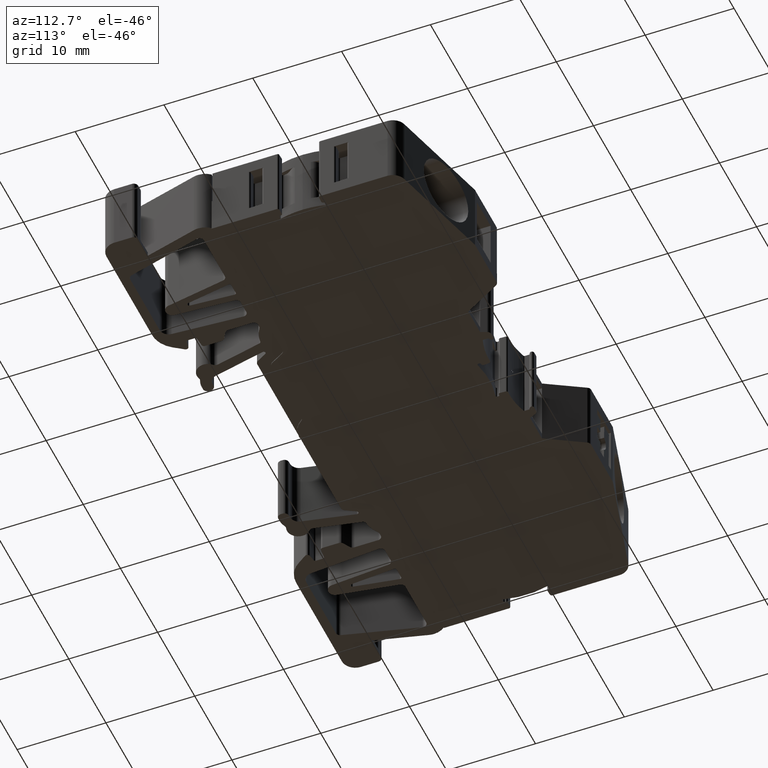
[diagram: clean part render]
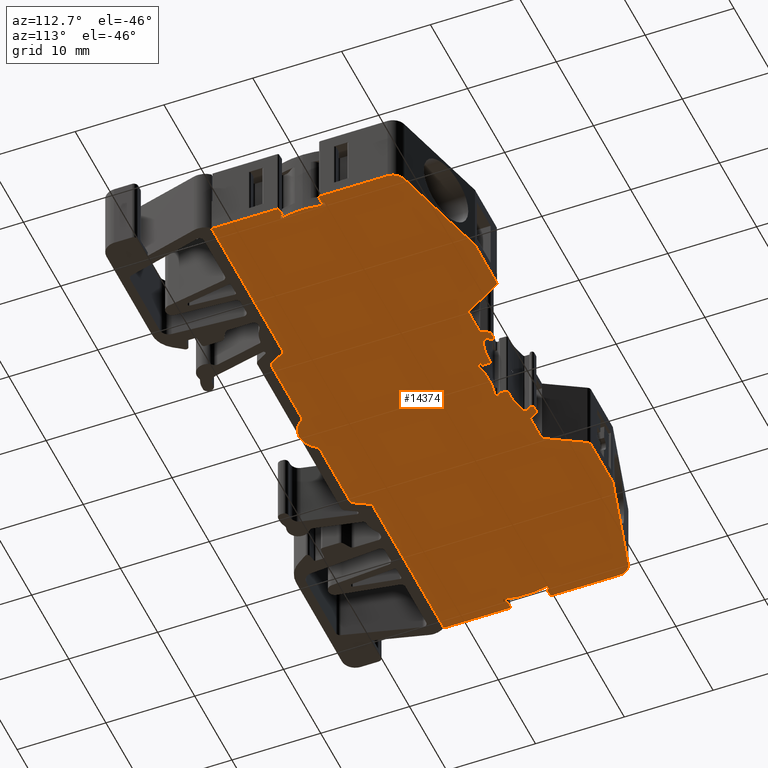
[diagram: same view with one face highlighted and labeled with its STEP entity id]
A machine part, auxiliary view. The second image highlights one B-rep face of the part: STEP entity #14374.
In plain terms, the highlighted planar face has unit normal (0, 0, -1).
Its self-contained STEP definition (entity closure, byte-faithful):
#3 = CARTESIAN_POINT ( 'NONE',  ( 181.8849086818081300, 25.45438642888380800, -20.70000000000000300 ) ) ;
#5 = CARTESIAN_POINT ( 'NONE',  ( 181.7933100538123200, 25.52607137823288500, -20.70000000000000300 ) ) ;
#11 = CARTESIAN_POINT ( 'NONE',  ( 181.7517794118587100, 25.52641206303565700, -20.70000000000001400 ) ) ;
#12 = CARTESIAN_POINT ( 'NONE',  ( 209.5610806319869000, 14.56168574033741300, -20.70000000000000300 ) ) ;
#13 = CARTESIAN_POINT ( 'NONE',  ( 184.8245969808895100, 28.19586644807342100, -20.70000000000001400 ) ) ;
#17 = CARTESIAN_POINT ( 'NONE',  ( 209.5409082285933900, 14.51577190782730900, -20.69999999999999600 ) ) ;
#28 = CARTESIAN_POINT ( 'NONE',  ( 181.8282420361928200, 25.51159811431842400, -20.69999999999999600 ) ) ;
#29 = CARTESIAN_POINT ( 'NONE',  ( 185.7636102341862500, 27.89086887760456100, -20.70000000000001400 ) ) ;
#34 = CARTESIAN_POINT ( 'NONE',  ( 209.5635305381498500, 14.61730839687980500, -20.69999999999999900 ) ) ;
#38 = CARTESIAN_POINT ( 'NONE',  ( 184.7707021106781400, 28.19586369002887600, -20.70000000000001700 ) ) ;
#39 = CARTESIAN_POINT ( 'NONE',  ( 185.7264857750778300, 27.98049484294669800, -20.70000000000001700 ) ) ;
#40 = CARTESIAN_POINT ( 'NONE',  ( 181.8996506952734600, 25.41917669017993800, -20.69999999999999600 ) ) ;
#42 = CARTESIAN_POINT ( 'NONE',  ( 209.4651184273457400, 14.44336189087170800, -20.70000000000000300 ) ) ;
#44 = CARTESIAN_POINT ( 'NONE',  ( 181.8999816203399000, 25.37819071947084700, -20.70000000000001400 ) ) ;
#57 = CARTESIAN_POINT ( 'NONE',  ( 185.6623005449451700, 28.05870457995650800, -20.70000000000002100 ) ) ;
#58 = CARTESIAN_POINT ( 'NONE',  ( 185.4041588287713000, 28.19586644831589300, -20.70000000000001700 ) ) ;
#59 = CARTESIAN_POINT ( 'NONE',  ( 184.5999344719070900, 28.06481496099953400, -20.70000000000001700 ) ) ;
#60 = CARTESIAN_POINT ( 'NONE',  ( 184.5757562408498700, 27.90407346353870800, -20.70000000000001700 ) ) ;
#61 = CARTESIAN_POINT ( 'NONE',  ( 209.5635305405042200, 19.44030078032660900, -20.69999999999999900 ) ) ;
#65 = CARTESIAN_POINT ( 'NONE',  ( 209.5611251545086300, 19.49460797837693700, -20.69999999999999600 ) ) ;
#66 = CARTESIAN_POINT ( 'NONE',  ( 209.5402779386464500, 19.54118914218445400, -20.70000000000000300 ) ) ;
#67 = CARTESIAN_POINT ( 'NONE',  ( 209.4192808145641900, 19.63375838311273800, -20.70000000000000300 ) ) ;
#68 = CARTESIAN_POINT ( 'NONE',  ( 184.7169696701902000, 28.17762089269574900, -20.70000000000002100 ) ) ;
#72 = CARTESIAN_POINT ( 'NONE',  ( 184.6314577322688400, 28.11199820878404400, -20.70000000000001400 ) ) ;
#73 = CARTESIAN_POINT ( 'NONE',  ( 184.5720419361162200, 27.96069659269701900, -20.70000000000001400 ) ) ;
#74 = CARTESIAN_POINT ( 'NONE',  ( 184.6170109342568300, 27.80449094276962900, -20.70000000000002100 ) ) ;
#76 = CARTESIAN_POINT ( 'NONE',  ( 185.5009778754042000, 28.16649675408154300, -20.70000000000001700 ) ) ;
#81 = CARTESIAN_POINT ( 'NONE',  ( 185.3071483183736900, 28.19586644831592500, -20.70000000000001400 ) ) ;
#82 = CARTESIAN_POINT ( 'NONE',  ( 209.4657481881103000, 19.61489577108756400, -20.69999999999999600 ) ) ;
#93 = CARTESIAN_POINT ( 'NONE',  ( 209.3636109427400000, 19.63463029271150600, -20.69999999999999900 ) ) ;
#104 = CARTESIAN_POINT ( 'NONE',  ( 184.6544277029761600, 27.76182995082225700, -20.70000000000001700 ) ) ;
#105 = CARTESIAN_POINT ( 'NONE',  ( 184.7011034986262200, 27.73488505996820300, -20.70000000000001000 ) ) ;
#329 = LINE ( 'NONE', #339, #10262 ) ;
#339 = CARTESIAN_POINT ( 'NONE',  ( 186.0465890321136700, 28.19586644831601400, -20.70000000000001700 ) ) ;
#359 = DIRECTION ( 'NONE',  ( 1.000000000000000000, 0.0000000000000000000, 0.0000000000000000000 ) ) ;
#360 = DIRECTION ( 'NONE',  ( -0.9999999924263932600, -0.0001230740152576164100, 0.0000000000000000000 ) ) ;
#383 = LINE ( 'NONE', #393, #10260 ) ;
#393 = CARTESIAN_POINT ( 'NONE',  ( 176.9344567568746200, 25.52641217180284600, -20.70000000000001700 ) ) ;
#579 = LINE ( 'NONE', #586, #10242 ) ;
#581 = DIRECTION ( 'NONE',  ( 0.9999999999944205700, 3.340484479243183300E-006, 0.0000000000000000000 ) ) ;
#585 = LINE ( 'NONE', #597, #10256 ) ;
#586 = CARTESIAN_POINT ( 'NONE',  ( 179.3232755812014700, 19.63463029271150600, -20.69999999999999900 ) ) ;
#597 = CARTESIAN_POINT ( 'NONE',  ( 179.3231085303629900, 14.42287845167087900, -20.69999999999999900 ) ) ;
#604 = DIRECTION ( 'NONE',  ( 1.000000000000000000, 0.0000000000000000000, 0.0000000000000000000 ) ) ;
#826 = LINE ( 'NONE', #849, #10304 ) ;
#837 = DIRECTION ( 'NONE',  ( 1.000000000000000000, 0.0000000000000000000, 0.0000000000000000000 ) ) ;
#849 = CARTESIAN_POINT ( 'NONE',  ( 179.3232755812014700, 19.63463029271150600, -20.69999999999999900 ) ) ;
#897 = LINE ( 'NONE', #901, #10306 ) ;
#901 = CARTESIAN_POINT ( 'NONE',  ( 179.3234426320405000, 14.42287845167087900, -20.69999999999999900 ) ) ;
#902 = DIRECTION ( 'NONE',  ( 0.9999999999944205700, -3.340484479243183300E-006, 0.0000000000000000000 ) ) ;
#923 = CARTESIAN_POINT ( 'NONE',  ( 176.7504324161098200, 25.41972803912826300, -20.70000000000000300 ) ) ;
#948 = CARTESIAN_POINT ( 'NONE',  ( 176.8220624945859600, 25.51132583921502900, -20.70000000000000300 ) ) ;
#952 = CARTESIAN_POINT ( 'NONE',  ( 176.7649035445281000, 25.45466426450132500, -20.69999999999999600 ) ) ;
#953 = CARTESIAN_POINT ( 'NONE',  ( 176.7500696343024600, 25.37818637573896300, -20.70000000000001400 ) ) ;
#960 = CARTESIAN_POINT ( 'NONE',  ( 176.8982919928747000, 25.52640771992176400, -20.70000000000001400 ) ) ;
#968 = CARTESIAN_POINT ( 'NONE',  ( 176.8572539270744000, 25.52604961666169500, -20.69999999999999600 ) ) ;
#989 = LINE ( 'NONE', #1002, #10396 ) ;
#1002 = CARTESIAN_POINT ( 'NONE',  ( 181.7155594736076700, 25.52641206334449500, -20.70000000000001700 ) ) ;
#1003 = DIRECTION ( 'NONE',  ( -1.000000000000000000, -0.0000000000000000000, 0.0000000000000000000 ) ) ;
#1029 = CARTESIAN_POINT ( 'NONE',  ( 173.8897952482237800, 28.19586976160146800, -20.70000000000001700 ) ) ;
#1053 = CARTESIAN_POINT ( 'NONE',  ( 174.0721676068263000, 27.94883087519345800, -20.70000000000001000 ) ) ;
#1054 = CARTESIAN_POINT ( 'NONE',  ( 174.0455420064584800, 28.07778430329855700, -20.70000000000002100 ) ) ;
#1066 = CARTESIAN_POINT ( 'NONE',  ( 174.0721676068263500, 28.01350674644218900, -20.70000000000001700 ) ) ;
#1071 = CARTESIAN_POINT ( 'NONE',  ( 173.9540741691343400, 28.16924745447092700, -20.70000000000001700 ) ) ;
#1074 = CARTESIAN_POINT ( 'NONE',  ( 173.8251193770599600, 28.19586644815389700, -20.70000000000001400 ) ) ;
#1090 = CARTESIAN_POINT ( 'NONE',  ( 209.3636116061284700, 14.42297880150515300, -20.69999999999999900 ) ) ;
#1103 = CARTESIAN_POINT ( 'NONE',  ( 209.4179650551654100, 14.42384365750050700, -20.69999999999999600 ) ) ;
#1306 = CARTESIAN_POINT ( 'NONE',  ( 210.3820357082669800, 19.27279471021771300, -20.69999999999999900 ) ) ;
#1577 = CARTESIAN_POINT ( 'NONE',  ( 191.6230820417675300, 31.33042685278292800, -20.69999999999999600 ) ) ;
#1582 = DIRECTION ( 'NONE',  ( 0.9659258718755021600, -0.2588188749715732400, 0.0000000000000000000 ) ) ;
#1585 = CARTESIAN_POINT ( 'NONE',  ( 209.0733057929664900, 7.244798003277548300, -20.69999999999999900 ) ) ;
#1591 = DIRECTION ( 'NONE',  ( -1.000000000000000000, 0.0000000000000000000, -0.0000000000000000000 ) ) ;
#1598 = CARTESIAN_POINT ( 'NONE',  ( 181.7951358624179900, 4.823695264897060600, -20.69999999999999900 ) ) ;
#1599 = LINE ( 'NONE', #1585, #7506 ) ;
#1600 = LINE ( 'NONE', #1609, #7501 ) ;
#1601 = DIRECTION ( 'NONE',  ( -0.0000000000000000000, -0.0000000000000000000, -1.000000000000000000 ) ) ;
#1602 = DIRECTION ( 'NONE',  ( 0.0000000000000000000, 0.0000000000000000000, -1.000000000000000000 ) ) ;
#1604 = LINE ( 'NONE', #1611, #7420 ) ;
#1608 = CARTESIAN_POINT ( 'NONE',  ( 149.5732448195258000, 27.02647520077369900, -20.69999999999999900 ) ) ;
#1609 = CARTESIAN_POINT ( 'NONE',  ( 209.0733057929664900, 27.21152987253114100, -20.69999999999999900 ) ) ;
#1611 = CARTESIAN_POINT ( 'NONE',  ( 197.8732699237574500, 31.58042799747886400, -20.69999999999999900 ) ) ;
#1615 = DIRECTION ( 'NONE',  ( -1.000000000000000000, 0.0000000000000000000, 0.0000000000000000000 ) ) ;
#1618 = DIRECTION ( 'NONE',  ( -1.000000000000000000, -3.469446951953611000E-014, 0.0000000000000000000 ) ) ;
#1619 = CARTESIAN_POINT ( 'NONE',  ( 179.3232629110730200, 6.523695950551170200, -20.69999999999999900 ) ) ;
#1620 = DIRECTION ( 'NONE',  ( -0.0000000000000000000, -0.0000000000000000000, 1.000000000000000000 ) ) ;
#1622 = DIRECTION ( 'NONE',  ( 1.000000000000000000, -0.0000000000000000000, 0.0000000000000000000 ) ) ;
#1626 = DIRECTION ( 'NONE',  ( -1.000000000000000000, 0.0000000000000000000, -0.0000000000000000000 ) ) ;
#1628 = DIRECTION ( 'NONE',  ( 1.000000000000000000, 2.544261098099314800E-014, 0.0000000000000000000 ) ) ;
#1655 = CARTESIAN_POINT ( 'NONE',  ( 209.0733057929664900, 31.58042765594745700, -20.69999999999999900 ) ) ;
#1661 = LINE ( 'NONE', #1655, #7459 ) ;
#1662 = LINE ( 'NONE', #1663, #7483 ) ;
#1663 = CARTESIAN_POINT ( 'NONE',  ( 189.2450386064320200, 27.21152987253115200, -20.69999999999999900 ) ) ;
#1664 = DIRECTION ( 'NONE',  ( 0.4999995323073796500, 0.8660256738067305700, 0.0000000000000000000 ) ) ;
#1665 = CARTESIAN_POINT ( 'NONE',  ( 191.0873426261015000, 6.994799250346018100, -20.69999999999999900 ) ) ;
#1669 = DIRECTION ( 'NONE',  ( 1.000000000000000000, -0.0000000000000000000, 0.0000000000000000000 ) ) ;
#1670 = LINE ( 'NONE', #1665, #7476 ) ;
#1671 = DIRECTION ( 'NONE',  ( -0.5000024941369737300, -0.8660239637889967100, 0.0000000000000000000 ) ) ;
#1683 = DIRECTION ( 'NONE',  ( -0.0000000000000000000, -0.0000000000000000000, -1.000000000000000000 ) ) ;
#1685 = CARTESIAN_POINT ( 'NONE',  ( 209.0733057929664900, 5.323695264897058800, -20.69999999999999900 ) ) ;
#1687 = CARTESIAN_POINT ( 'NONE',  ( 209.0733063428775200, 27.02647520077369900, -20.69999999999999900 ) ) ;
#1690 = CARTESIAN_POINT ( 'NONE',  ( 210.5733057929659800, 26.35756115173105800, -20.69999999999999900 ) ) ;
#1691 = DIRECTION ( 'NONE',  ( -8.220965632389480600E-007, -0.9999999999996621600, 0.0000000000000000000 ) ) ;
#1692 = DIRECTION ( 'NONE',  ( 0.9659396724863925600, 0.2587673648605649000, 0.0000000000000000000 ) ) ;
#1694 = CARTESIAN_POINT ( 'NONE',  ( 184.7772178771637100, 26.97964760468302000, -20.70000000000001700 ) ) ;
#1698 = DIRECTION ( 'NONE',  ( 1.000000000000000000, 4.625929269271481400E-015, 0.0000000000000000000 ) ) ;
#1703 = LINE ( 'NONE', #1694, #7469 ) ;
#1707 = LINE ( 'NONE', #1685, #7494 ) ;
#1713 = LINE ( 'NONE', #1690, #7504 ) ;
#1722 = CARTESIAN_POINT ( 'NONE',  ( 168.8127014637594800, 5.823695264897060600, -20.69999999999999900 ) ) ;
#1728 = CARTESIAN_POINT ( 'NONE',  ( 176.4950740331747700, 34.06315727985587200, -20.70000000000001700 ) ) ;
#1729 = CARTESIAN_POINT ( 'NONE',  ( 177.1125309158590000, 25.62183966864851900, -20.70000000000001700 ) ) ;
#1730 = CARTESIAN_POINT ( 'NONE',  ( 177.1340369338008100, 25.72601691337395000, -20.70000000000001400 ) ) ;
#1735 = DIRECTION ( 'NONE',  ( 0.0000000000000000000, 0.0000000000000000000, 1.000000000000000000 ) ) ;
#1736 = CARTESIAN_POINT ( 'NONE',  ( 176.9867235411670400, 25.52642315374277300, -20.70000000000001700 ) ) ;
#1740 = LINE ( 'NONE', #1741, #7511 ) ;
#1741 = CARTESIAN_POINT ( 'NONE',  ( 149.1850165070684400, 28.47536400858691900, -20.69999999999999900 ) ) ;
#1742 = CARTESIAN_POINT ( 'NONE',  ( 177.0386468566086900, 25.54794008268346100, -20.70000000000002100 ) ) ;
#1743 = DIRECTION ( 'NONE',  ( -1.000000000000000000, 0.0000000000000000000, -0.0000000000000000000 ) ) ;
#1744 = CARTESIAN_POINT ( 'NONE',  ( 176.9344741331920300, 25.52641217450854300, -20.70000000000001400 ) ) ;
#1745 = CARTESIAN_POINT ( 'NONE',  ( 177.1340369338008100, 25.67376750424543300, -20.70000000000001700 ) ) ;
#1747 = DIRECTION ( 'NONE',  ( 1.000000000000000000, -2.775557561562888800E-014, 0.0000000000000000000 ) ) ;
#1756 = DIRECTION ( 'NONE',  ( -0.0000000000000000000, -0.0000000000000000000, -1.000000000000000000 ) ) ;
#1767 = DIRECTION ( 'NONE',  ( 1.000000000000000000, 0.0000000000000000000, 0.0000000000000000000 ) ) ;
#1768 = CARTESIAN_POINT ( 'NONE',  ( 209.0733057929664900, 31.58042868054170100, -20.69999999999999900 ) ) ;
#1769 = CARTESIAN_POINT ( 'NONE',  ( 210.5733063428770000, 26.35756238487590200, -20.69999999999999900 ) ) ;
#1772 = DIRECTION ( 'NONE',  ( -0.0000000000000000000, -1.000000000000000000, -0.0000000000000000000 ) ) ;
#1782 = CARTESIAN_POINT ( 'NONE',  ( 167.0234692112914600, 31.33042690512290200, -20.69999999999999900 ) ) ;
#1785 = LINE ( 'NONE', #1782, #7460 ) ;
#1786 = DIRECTION ( 'NONE',  ( 0.4999995323073809200, -0.8660256738067297900, 0.0000000000000000000 ) ) ;
#1797 = DIRECTION ( 'NONE',  ( 0.9659258718755019400, 0.2588188749715743500, 0.0000000000000000000 ) ) ;
#1800 = DIRECTION ( 'NONE',  ( 0.0000000000000000000, 0.0000000000000000000, 1.000000000000000000 ) ) ;
#1804 = LINE ( 'NONE', #1768, #7455 ) ;
#1805 = LINE ( 'NONE', #1808, #7491 ) ;
#1806 = DIRECTION ( 'NONE',  ( 1.000000000000000000, -0.0000000000000000000, 0.0000000000000000000 ) ) ;
#1808 = CARTESIAN_POINT ( 'NONE',  ( 209.0733057929664900, 27.21152987253115200, -20.69999999999999900 ) ) ;
#1809 = CARTESIAN_POINT ( 'NONE',  ( 182.1494077281836600, 34.06315664500236600, -20.70000000000001700 ) ) ;
#1810 = DIRECTION ( 'NONE',  ( 1.000000000000000000, 0.0000000000000000000, 0.0000000000000000000 ) ) ;
#1811 = DIRECTION ( 'NONE',  ( 1.000000000000000000, -0.0000000000000000000, 0.0000000000000000000 ) ) ;
#1814 = LINE ( 'NONE', #1769, #7456 ) ;
#1886 = DIRECTION ( 'NONE',  ( -0.0000000000000000000, -0.0000000000000000000, -1.000000000000000000 ) ) ;
#1892 = CARTESIAN_POINT ( 'NONE',  ( 159.1800094123574900, 17.02880934880360200, -20.69999999999999900 ) ) ;
#1898 = DIRECTION ( 'NONE',  ( 1.000000000000000000, 3.469446951953698200E-015, 0.0000000000000000000 ) ) ;
#1925 = CARTESIAN_POINT ( 'NONE',  ( 179.3250983358117900, 15.40115393751090500, -20.70000000000001700 ) ) ;
#1927 = DIRECTION ( 'NONE',  ( -0.0000000000000000000, -0.0000000000000000000, -1.000000000000000000 ) ) ;
#1951 = DIRECTION ( 'NONE',  ( 1.000000000000000000, -3.632152050390110700E-015, 0.0000000000000000000 ) ) ;
#2155 = CARTESIAN_POINT ( 'NONE',  ( 186.0465890321136700, 28.19586644831601400, -20.70000000000001700 ) ) ;
#2174 = LINE ( 'NONE', #2155, #7564 ) ;
#2182 = DIRECTION ( 'NONE',  ( 1.000000000000000000, 0.0000000000000000000, 0.0000000000000000000 ) ) ;
#2296 = CARTESIAN_POINT ( 'NONE',  ( 176.7500696343026600, 25.37818637573896300, -20.70000000000001700 ) ) ;
#2334 = CARTESIAN_POINT ( 'NONE',  ( 149.0830206242534900, 14.61730839687980000, -20.69999999999999900 ) ) ;
#2347 = CARTESIAN_POINT ( 'NONE',  ( 149.0854259814092000, 14.56300131027902200, -20.69999999999999600 ) ) ;
#2349 = CARTESIAN_POINT ( 'NONE',  ( 149.1062731063570100, 14.51642020549053700, -20.70000000000000300 ) ) ;
#2351 = CARTESIAN_POINT ( 'NONE',  ( 149.2829395562747800, 14.42297880150515300, -20.69999999999999900 ) ) ;
#2356 = CARTESIAN_POINT ( 'NONE',  ( 149.1808025625104200, 14.44271359320833300, -20.69999999999999600 ) ) ;
#2360 = CARTESIAN_POINT ( 'NONE',  ( 149.2272698031241300, 14.42385089392691100, -20.70000000000000300 ) ) ;
#2431 = DIRECTION ( 'NONE',  ( -0.0000000000000000000, -1.000000000000000000, 0.0000000000000000000 ) ) ;
#2451 = CARTESIAN_POINT ( 'NONE',  ( 181.8999816203397000, 24.91503680044687700, -20.70000000000001700 ) ) ;
#2467 = LINE ( 'NONE', #2451, #7568 ) ;
#2468 = DIRECTION ( 'NONE',  ( 0.0000000000000000000, 1.000000000000000000, 0.0000000000000000000 ) ) ;
#2498 = CARTESIAN_POINT ( 'NONE',  ( 149.1814331481007200, 19.61424746968977600, -20.70000000000000300 ) ) ;
#2504 = CARTESIAN_POINT ( 'NONE',  ( 149.2829402196636000, 19.63463029271150600, -20.69999999999999900 ) ) ;
#2506 = CARTESIAN_POINT ( 'NONE',  ( 149.2285866551586400, 19.63376561517795300, -20.69999999999999600 ) ) ;
#2507 = CARTESIAN_POINT ( 'NONE',  ( 149.1056430499496300, 19.54183744358225600, -20.69999999999999600 ) ) ;
#2508 = CARTESIAN_POINT ( 'NONE',  ( 174.7472260386516600, 28.19586644831601400, -20.70000000000001700 ) ) ;
#2509 = DIRECTION ( 'NONE',  ( -0.8660646314732661800, -0.4999320494938042100, 0.0000000000000000000 ) ) ;
#2520 = CARTESIAN_POINT ( 'NONE',  ( 149.0854705575744100, 19.49592355147912700, -20.70000000000000300 ) ) ;
#2521 = CARTESIAN_POINT ( 'NONE',  ( 149.0830206218992900, 19.44030078032660200, -20.69999999999999900 ) ) ;
#2522 = LINE ( 'NONE', #2508, #7580 ) ;
#2524 = CARTESIAN_POINT ( 'NONE',  ( 181.5135743119217600, 25.68189670311946300, -20.70000000000001700 ) ) ;
#2562 = CARTESIAN_POINT ( 'NONE',  ( 181.5161891900868600, 25.73570838867029300, -20.70000000000001000 ) ) ;
#2575 = CARTESIAN_POINT ( 'NONE',  ( 181.7155768361582500, 25.52641206391089000, -20.70000000000001400 ) ) ;
#2580 = LINE ( 'NONE', #2296, #6758 ) ;
#2583 = DIRECTION ( 'NONE',  ( 0.3826849168797564800, -0.9238789176037810500, 0.0000000000000000000 ) ) ;
#2596 = LINE ( 'NONE', #2608, #7590 ) ;
#2607 = CARTESIAN_POINT ( 'NONE',  ( 181.6081985891889600, 25.54932999437281900, -20.70000000000001700 ) ) ;
#2608 = CARTESIAN_POINT ( 'NONE',  ( 184.6418436252487500, 30.59904073062541800, -20.70000000000001700 ) ) ;
#2617 = CARTESIAN_POINT ( 'NONE',  ( 181.5338768688696700, 25.62734553303539200, -20.70000000000002100 ) ) ;
#2618 = CARTESIAN_POINT ( 'NONE',  ( 181.6617016510166100, 25.52640737778505200, -20.70000000000001700 ) ) ;
#2624 = CARTESIAN_POINT ( 'NONE',  ( 176.8438875077622200, 25.13946454415384200, -20.69999999999999600 ) ) ;
#2625 = CARTESIAN_POINT ( 'NONE',  ( 176.7697674162637900, 25.19818802198160800, -20.70000000000000300 ) ) ;
#2628 = LINE ( 'NONE', #2660, #7403 ) ;
#2630 = CARTESIAN_POINT ( 'NONE',  ( 181.8994945305472000, 25.23673128517648900, -20.70000000000000300 ) ) ;
#2632 = LINE ( 'NONE', #2633, #7419 ) ;
#2633 = CARTESIAN_POINT ( 'NONE',  ( 209.0733057929664900, 5.323695264897058800, -20.69999999999999900 ) ) ;
#2634 = DIRECTION ( 'NONE',  ( -0.0000000000000000000, -0.0000000000000000000, -1.000000000000000000 ) ) ;
#2635 = DIRECTION ( 'NONE',  ( 0.0000000000000000000, 1.000000000000000000, 0.0000000000000000000 ) ) ;
#2637 = CARTESIAN_POINT ( 'NONE',  ( 181.8058737605579200, 25.13987252332131900, -20.70000000000000300 ) ) ;
#2638 = DIRECTION ( 'NONE',  ( -0.0000000000000000000, -0.0000000000000000000, -1.000000000000000000 ) ) ;
#2639 = CARTESIAN_POINT ( 'NONE',  ( 176.7505506665714600, 25.23730242034367800, -20.69999999999999600 ) ) ;
#2640 = CARTESIAN_POINT ( 'NONE',  ( 176.8861559647240800, 25.13036118145468500, -20.70000000000000300 ) ) ;
#2644 = DIRECTION ( 'NONE',  ( 1.000000000000000000, 2.081668171172166600E-014, 0.0000000000000000000 ) ) ;
#2645 = CARTESIAN_POINT ( 'NONE',  ( 176.9336328328985800, 25.14151619497026500, -20.70000000000001400 ) ) ;
#2647 = CARTESIAN_POINT ( 'NONE',  ( 181.7164205394667500, 25.14155137685948200, -20.70000000000001400 ) ) ;
#2648 = CARTESIAN_POINT ( 'NONE',  ( 181.8805755406323200, 25.19785279205728700, -20.69999999999999600 ) ) ;
#2649 = CARTESIAN_POINT ( 'NONE',  ( 199.4665417500459900, 17.02880934880360200, -20.69999999999999900 ) ) ;
#2650 = CARTESIAN_POINT ( 'NONE',  ( 181.7633059129642800, 25.13053606315067200, -20.69999999999999600 ) ) ;
#2651 = CARTESIAN_POINT ( 'NONE',  ( 181.8999816203398200, 25.28549813704689000, -20.70000000000001400 ) ) ;
#2652 = DIRECTION ( 'NONE',  ( 1.000000000000000000, 6.938893903907396400E-015, 0.0000000000000000000 ) ) ;
#2654 = CARTESIAN_POINT ( 'NONE',  ( 176.7500696343025800, 25.28546243522838900, -20.70000000000001400 ) ) ;
#2655 = CARTESIAN_POINT ( 'NONE',  ( 189.8338496986440000, 5.823695264897060600, -20.69999999999999900 ) ) ;
#2660 = CARTESIAN_POINT ( 'NONE',  ( 148.0732461534304600, 26.35756238487590200, -20.69999999999999900 ) ) ;
#2689 = EDGE_CURVE ( 'NONE', #13630, #11931, #8684, .T. ) ;
#2699 = EDGE_CURVE ( 'NONE', #11441, #13529, #8689, .T. ) ;
#2709 = EDGE_CURVE ( 'NONE', #13653, #11921, #7764, .T. ) ;
#2732 = EDGE_CURVE ( 'NONE', #13672, #12080, #7819, .T. ) ;
#2755 = EDGE_CURVE ( 'NONE', #13677, #13622, #5992, .T. ) ;
#2769 = EDGE_CURVE ( 'NONE', #13675, #13578, #6034, .T. ) ;
#2770 = EDGE_CURVE ( 'NONE', #13700, #13625, #6019, .T. ) ;
#2780 = EDGE_CURVE ( 'NONE', #12125, #13656, #6043, .T. ) ;
#2798 = EDGE_CURVE ( 'NONE', #13630, #13646, #6053, .T. ) ;
#2819 = EDGE_CURVE ( 'NONE', #14321, #13746, #6004, .T. ) ;
#2857 = EDGE_CURVE ( 'NONE', #13699, #13653, #6058, .T. ) ;
#2872 = EDGE_CURVE ( 'NONE', #13746, #13748, #8475, .T. ) ;
#2878 = EDGE_CURVE ( 'NONE', #13775, #13752, #6025, .T. ) ;
#2889 = EDGE_CURVE ( 'NONE', #13770, #13672, #8514, .T. ) ;
#2896 = EDGE_CURVE ( 'NONE', #13634, #13529, #6032, .T. ) ;
#2897 = EDGE_CURVE ( 'NONE', #13597, #13747, #6013, .T. ) ;
#2898 = EDGE_CURVE ( 'NONE', #13782, #13656, #6033, .T. ) ;
#2914 = EDGE_CURVE ( 'NONE', #13715, #13794, #7396, .T. ) ;
#2917 = EDGE_CURVE ( 'NONE', #13761, #13707, #7393, .T. ) ;
#2918 = EDGE_CURVE ( 'NONE', #13766, #13773, #7412, .T. ) ;
#2920 = EDGE_CURVE ( 'NONE', #13713, #13766, #8623, .T. ) ;
#2923 = EDGE_CURVE ( 'NONE', #13677, #13754, #8630, .T. ) ;
#2924 = EDGE_CURVE ( 'NONE', #13762, #13761, #8659, .T. ) ;
#2926 = EDGE_CURVE ( 'NONE', #13727, #13779, #7443, .T. ) ;
#2930 = EDGE_CURVE ( 'NONE', #13728, #13646, #8751, .T. ) ;
#2935 = EDGE_CURVE ( 'NONE', #11022, #10061, #7405, .T. ) ;
#2936 = EDGE_CURVE ( 'NONE', #13699, #13799, #2628, .T. ) ;
#2937 = EDGE_CURVE ( 'NONE', #13730, #11281, #6091, .T. ) ;
#2938 = EDGE_CURVE ( 'NONE', #11222, #13693, #6083, .T. ) ;
#2940 = EDGE_CURVE ( 'NONE', #13771, #13709, #7415, .T. ) ;
#2943 = EDGE_CURVE ( 'NONE', #13794, #13804, #2632, .T. ) ;
#2945 = EDGE_CURVE ( 'NONE', #13779, #13715, #7414, .T. ) ;
#2946 = EDGE_CURVE ( 'NONE', #13741, #13692, #1604, .T. ) ;
#2947 = EDGE_CURVE ( 'NONE', #13763, #13727, #7422, .T. ) ;
#2951 = EDGE_CURVE ( 'NONE', #13799, #13718, #7446, .T. ) ;
#2952 = EDGE_CURVE ( 'NONE', #11299, #13739, #1600, .T. ) ;
#2953 = EDGE_CURVE ( 'NONE', #13773, #13728, #1599, .T. ) ;
#2959 = EDGE_CURVE ( 'NONE', #13707, #13771, #1670, .T. ) ;
#2967 = EDGE_CURVE ( 'NONE', #13700, #13741, #1661, .T. ) ;
#2969 = EDGE_CURVE ( 'NONE', #13739, #13625, #1662, .T. ) ;
#2971 = EDGE_CURVE ( 'NONE', #13785, #13675, #1703, .T. ) ;
#2973 = EDGE_CURVE ( 'NONE', #13692, #13731, #7497, .T. ) ;
#2980 = EDGE_CURVE ( 'NONE', #13634, #13762, #1713, .T. ) ;
#2981 = EDGE_CURVE ( 'NONE', #13748, #13782, #7505, .T. ) ;
#2982 = EDGE_CURVE ( 'NONE', #13709, #13763, #1707, .T. ) ;
#2986 = EDGE_CURVE ( 'NONE', #12188, #12146, #6087, .T. ) ;
#2988 = EDGE_CURVE ( 'NONE', #13804, #13713, #7471, .T. ) ;
#2991 = EDGE_CURVE ( 'NONE', #13775, #13786, #1785, .T. ) ;
#2993 = EDGE_CURVE ( 'NONE', #13718, #13783, #1740, .T. ) ;
#2998 = EDGE_CURVE ( 'NONE', #13754, #13785, #7453, .T. ) ;
#3001 = EDGE_CURVE ( 'NONE', #13783, #13752, #1804, .T. ) ;
#3002 = EDGE_CURVE ( 'NONE', #13786, #13770, #1805, .T. ) ;
#3003 = EDGE_CURVE ( 'NONE', #13731, #13747, #1814, .T. ) ;
#3017 = EDGE_CURVE ( 'NONE', #10983, #10980, #7499, .T. ) ;
#3027 = EDGE_CURVE ( 'NONE', #13693, #13730, #7567, .T. ) ;
#3040 = EDGE_CURVE ( 'NONE', #11237, #11026, #2174, .T. ) ;
#3094 = EDGE_CURVE ( 'NONE', #11271, #10978, #6110, .T. ) ;
#3113 = EDGE_CURVE ( 'NONE', #11281, #11063, #2467, .T. ) ;
#3133 = EDGE_CURVE ( 'NONE', #11050, #11263, #6152, .T. ) ;
#3134 = EDGE_CURVE ( 'NONE', #12223, #11282, #2522, .T. ) ;
#3148 = EDGE_CURVE ( 'NONE', #11328, #11074, #6149, .T. ) ;
#3151 = EDGE_CURVE ( 'NONE', #10996, #11299, #2596, .T. ) ;
#3162 = EDGE_CURVE ( 'NONE', #11071, #11222, #2580, .T. ) ;
#3180 = EDGE_CURVE ( 'NONE', #11441, #11140, #6131, .T. ) ;
#3183 = EDGE_CURVE ( 'NONE', #11117, #11348, #6178, .T. ) ;
#3196 = EDGE_CURVE ( 'NONE', #11309, #11046, #4944, .T. ) ;
#3217 = EDGE_CURVE ( 'NONE', #12146, #11200, #6151, .T. ) ;
#3392 = EDGE_CURVE ( 'NONE', #11271, #11931, #6261, .T. ) ;
#3454 = EDGE_CURVE ( 'NONE', #11237, #12080, #6324, .T. ) ;
#3458 = EDGE_CURVE ( 'NONE', #11921, #11263, #6319, .T. ) ;
#3497 = EDGE_CURVE ( 'NONE', #11282, #14321, #15441, .T. ) ;
#3505 = EDGE_CURVE ( 'NONE', #12125, #11200, #15473, .T. ) ;
#3539 = EDGE_CURVE ( 'NONE', #11328, #13622, #15582, .T. ) ;
#3553 = EDGE_CURVE ( 'NONE', #11348, #13597, #15702, .T. ) ;
#3596 = EDGE_CURVE ( 'NONE', #13578, #11309, #9107, .T. ) ;
#4532 = CARTESIAN_POINT ( 'NONE',  ( 210.5733031464058600, 14.58500499063117000, -20.70000000000000300 ) ) ;
#4537 = CARTESIAN_POINT ( 'NONE',  ( 172.6032755812014700, 27.20771916437092500, -20.70000000000000300 ) ) ;
#4545 = CARTESIAN_POINT ( 'NONE',  ( 148.2645154541361900, 19.27279471021772400, -20.69999999999999600 ) ) ;
#4551 = CARTESIAN_POINT ( 'NONE',  ( 184.7772144876319700, 26.97964669661274300, -20.70000000000001400 ) ) ;
#4561 = CARTESIAN_POINT ( 'NONE',  ( 181.7406001171951000, 26.54096303372637100, -20.70000000000001400 ) ) ;
#4565 = CARTESIAN_POINT ( 'NONE',  ( 148.0732480159973900, 14.58500499063832100, -20.69999999999999600 ) ) ;
#4571 = CARTESIAN_POINT ( 'NONE',  ( 148.2645154541361900, 14.78481454997951500, -20.69999999999999900 ) ) ;
#4583 = CARTESIAN_POINT ( 'NONE',  ( 176.9076976002245100, 26.54092067055768600, -20.70000000000001000 ) ) ;
#4589 = CARTESIAN_POINT ( 'NONE',  ( 168.3796894818648900, 5.573694017828539200, -20.69999999999999900 ) ) ;
#4590 = CARTESIAN_POINT ( 'NONE',  ( 181.3831620145653300, 5.107028193949636500, -20.69999999999999900 ) ) ;
#4595 = CARTESIAN_POINT ( 'NONE',  ( 148.0732455439172100, 19.47260426958240500, -20.70000000000000300 ) ) ;
#4597 = CARTESIAN_POINT ( 'NONE',  ( 197.8732707734997400, 31.58042776979126000, -20.69999999999999600 ) ) ;
#4601 = CARTESIAN_POINT ( 'NONE',  ( 173.8726340098017400, 26.97822252682869500, -20.70000000000001400 ) ) ;
#4604 = CARTESIAN_POINT ( 'NONE',  ( 210.5733056184860700, 19.47260426957636500, -20.69999999999999900 ) ) ;
#4605 = CARTESIAN_POINT ( 'NONE',  ( 174.5479643532556500, 26.79729563140444900, -20.70000000000001700 ) ) ;
#4617 = CARTESIAN_POINT ( 'NONE',  ( 167.5592085363020100, 6.994799250346003900, -20.69999999999999900 ) ) ;
#4618 = CARTESIAN_POINT ( 'NONE',  ( 166.5904564057255800, 31.58042765594746400, -20.69999999999999600 ) ) ;
#4619 = CARTESIAN_POINT ( 'NONE',  ( 189.2450386064320200, 27.21152987253114500, -20.69999999999999900 ) ) ;
#4620 = CARTESIAN_POINT ( 'NONE',  ( 181.7164205394667500, 25.14155137685948200, -20.70000000000001400 ) ) ;
#4622 = CARTESIAN_POINT ( 'NONE',  ( 210.5732900742631800, 7.244797769300688200, -20.69999999999999900 ) ) ;
#4623 = CARTESIAN_POINT ( 'NONE',  ( 179.3232755812014700, 4.023690459977359500, -20.69999999999999900 ) ) ;
#4629 = CARTESIAN_POINT ( 'NONE',  ( 177.2633891478381300, 5.107028193949635600, -20.69999999999999900 ) ) ;
#4630 = CARTESIAN_POINT ( 'NONE',  ( 149.1850165070684400, 28.47536400858689700, -20.69999999999999900 ) ) ;
#4633 = CARTESIAN_POINT ( 'NONE',  ( 191.0873426261015000, 6.994799250346019000, -20.69999999999999900 ) ) ;
#4637 = CARTESIAN_POINT ( 'NONE',  ( 176.9336328328985800, 25.14151619497026500, -20.70000000000001400 ) ) ;
#4638 = CARTESIAN_POINT ( 'NONE',  ( 209.4615346553349000, 28.47536400858695400, -20.69999999999999900 ) ) ;
#4639 = CARTESIAN_POINT ( 'NONE',  ( 192.0560947566780800, 31.58042765594746400, -20.69999999999999200 ) ) ;
#4642 = CARTESIAN_POINT ( 'NONE',  ( 148.0732610819741500, 7.244797944783324600, -20.69999999999999900 ) ) ;
#4644 = CARTESIAN_POINT ( 'NONE',  ( 189.8338496986440000, 5.323695264897058800, -20.69999999999999900 ) ) ;
#4648 = CARTESIAN_POINT ( 'NONE',  ( 210.5733063428772600, 27.02647483083024200, -20.69999999999999900 ) ) ;
#4661 = CARTESIAN_POINT ( 'NONE',  ( 184.0963051286067300, 26.79723662948160300, -20.70000000000001700 ) ) ;
#4663 = CARTESIAN_POINT ( 'NONE',  ( 148.0732454864782100, 27.02647489248684900, -20.69999999999999900 ) ) ;
#4664 = CARTESIAN_POINT ( 'NONE',  ( 173.7611348420852600, 27.12353975194539000, -20.70000000000001000 ) ) ;
#4665 = CARTESIAN_POINT ( 'NONE',  ( 160.7732837878730300, 31.58042868054170100, -20.69999999999999600 ) ) ;
#4673 = CARTESIAN_POINT ( 'NONE',  ( 169.4015125559714900, 27.21152987253115200, -20.69999999999999900 ) ) ;
#4676 = CARTESIAN_POINT ( 'NONE',  ( 167.0234691206360400, 31.33042685278281100, -20.69999999999999900 ) ) ;
#4677 = CARTESIAN_POINT ( 'NONE',  ( 172.6032755812014700, 27.21152987253115200, -20.69999999999999900 ) ) ;
#4683 = CARTESIAN_POINT ( 'NONE',  ( 176.8514152999854900, 5.323695264897058800, -20.69999999999999900 ) ) ;
#4689 = CARTESIAN_POINT ( 'NONE',  ( 182.1494091819614300, 26.54092272408296100, -20.70000000000001700 ) ) ;
#4690 = CARTESIAN_POINT ( 'NONE',  ( 176.4948560983440600, 26.54092479524226200, -20.70000000000001400 ) ) ;
#4692 = CARTESIAN_POINT ( 'NONE',  ( 191.5203546110660400, 7.244797886289120500, -20.69999999999999900 ) ) ;
#4694 = CARTESIAN_POINT ( 'NONE',  ( 167.1261965528724700, 7.244798003277549200, -20.69999999999999900 ) ) ;
#4701 = CARTESIAN_POINT ( 'NONE',  ( 181.7951358624179900, 5.323695264897059700, -20.69999999999999900 ) ) ;
#4703 = CARTESIAN_POINT ( 'NONE',  ( 168.8127014637594800, 5.323695264897058800, -20.69999999999999900 ) ) ;
#4705 = CARTESIAN_POINT ( 'NONE',  ( 190.2668616805384800, 5.573694017828581900, -20.69999999999999900 ) ) ;
#4820 = CARTESIAN_POINT ( 'NONE',  ( 209.0733057929664900, 26.35756238487590200, -20.69999999999999900 ) ) ;
#4836 = DIRECTION ( 'NONE',  ( -1.000000000000000000, 0.0000000000000000000, -0.0000000000000000000 ) ) ;
#4847 = FACE_OUTER_BOUND ( 'NONE', #16516, .T. ) ;
#4848 = PLANE ( 'NONE',  #10517 ) ;
#4851 = DIRECTION ( 'NONE',  ( 0.0000000000000000000, 0.0000000000000000000, -1.000000000000000000 ) ) ;
#4871 = CARTESIAN_POINT ( 'NONE',  ( 209.5635305381498500, 14.61730839687980500, -20.69999999999999900 ) ) ;
#4874 = CARTESIAN_POINT ( 'NONE',  ( 209.7193568548145200, 14.81375419893521100, -20.69999999999999600 ) ) ;
#4882 = CARTESIAN_POINT ( 'NONE',  ( 209.6659160692364600, 19.26353694396948800, -20.69999999999999600 ) ) ;
#4885 = CARTESIAN_POINT ( 'NONE',  ( 209.5635305405042200, 19.44030078032660900, -20.69999999999999900 ) ) ;
#4886 = CARTESIAN_POINT ( 'NONE',  ( 209.7721759614560700, 14.81144755161067300, -20.69999999999999900 ) ) ;
#4888 = CARTESIAN_POINT ( 'NONE',  ( 209.6659160415002000, 14.79407230540954300, -20.70000000000000300 ) ) ;
#4892 = CARTESIAN_POINT ( 'NONE',  ( 209.7721759614565000, 19.24616170858656600, -20.69999999999999900 ) ) ;
#4901 = CARTESIAN_POINT ( 'NONE',  ( 209.5885047794297400, 19.33556611133246500, -20.70000000000000300 ) ) ;
#4903 = CARTESIAN_POINT ( 'NONE',  ( 209.7193568686392100, 19.24385506186575200, -20.70000000000000300 ) ) ;
#4917 = CARTESIAN_POINT ( 'NONE',  ( 209.5885047463831700, 14.72204310312704800, -20.69999999999999600 ) ) ;
#4918 = CARTESIAN_POINT ( 'NONE',  ( 209.5650294939932200, 14.67015659249390100, -20.70000000000000300 ) ) ;
#4920 = CARTESIAN_POINT ( 'NONE',  ( 209.5650295178936300, 19.38745259916657900, -20.69999999999999600 ) ) ;
#4930 = CARTESIAN_POINT ( 'NONE',  ( 184.8887244780126500, 27.62658650967092600, -20.70000000000001400 ) ) ;
#4944 = LINE ( 'NONE', #4930, #6759 ) ;
#4946 = DIRECTION ( 'NONE',  ( -0.8660743162900129700, 0.4999152714838650500, 0.0000000000000000000 ) ) ;
#4971 = CARTESIAN_POINT ( 'NONE',  ( 177.1339737934162600, 25.73181372333176900, -20.70000000000001700 ) ) ;
#4978 = CARTESIAN_POINT ( 'NONE',  ( 177.1340369338008100, 25.72891531843983200, -20.70000000000001700 ) ) ;
#4979 = CARTESIAN_POINT ( 'NONE',  ( 177.1338475725397100, 25.73470937873534200, -20.70000000000001000 ) ) ;
#4999 = CARTESIAN_POINT ( 'NONE',  ( 177.1340369338008100, 25.72601691337395000, -20.70000000000001400 ) ) ;
#5992 = B_SPLINE_CURVE_WITH_KNOTS ( 'NONE', 3,
 ( #8003, #7987, #8038, #8000, #8010, #8021 ),
 .UNSPECIFIED., .F., .F.,
 ( 4, 2, 4 ),
 ( 0.0000000000000000000, 0.5000000000000000000, 1.000000000000000000 ),
 .UNSPECIFIED. ) ;
#6004 = B_SPLINE_CURVE_WITH_KNOTS ( 'NONE', 3,
 ( #8278, #8250, #8241, #8290 ),
 .UNSPECIFIED., .F., .F.,
 ( 4, 4 ),
 ( 0.0000000000000000000, 1.000000000000000000 ),
 .UNSPECIFIED. ) ;
#6013 = B_SPLINE_CURVE_WITH_KNOTS ( 'NONE', 3,
 ( #8552, #8574, #8563, #8546, #8596, #8557 ),
 .UNSPECIFIED., .F., .F.,
 ( 4, 2, 4 ),
 ( 0.0000000000000000000, 0.5000000000000000000, 1.000000000000000000 ),
 .UNSPECIFIED. ) ;
#6019 = B_SPLINE_CURVE_WITH_KNOTS ( 'NONE', 3,
 ( #8043, #8071, #8056, #8041, #8054, #8076 ),
 .UNSPECIFIED., .F., .F.,
 ( 4, 2, 4 ),
 ( 0.0000000000000000000, 0.5000000000000000000, 1.000000000000000000 ),
 .UNSPECIFIED. ) ;
#6025 = B_SPLINE_CURVE_WITH_KNOTS ( 'NONE', 3,
 ( #8450, #8452, #8488, #8490, #8453, #8462 ),
 .UNSPECIFIED., .F., .F.,
 ( 4, 2, 4 ),
 ( 0.0000000000000000000, 0.5000000000000000000, 1.000000000000000000 ),
 .UNSPECIFIED. ) ;
#6032 = B_SPLINE_CURVE_WITH_KNOTS ( 'NONE', 3,
 ( #8503, #8504, #8547, #8567, #8549, #8588 ),
 .UNSPECIFIED., .F., .F.,
 ( 4, 2, 4 ),
 ( 0.0000000000000000000, 0.5000000000000000000, 1.000000000000000000 ),
 .UNSPECIFIED. ) ;
#6033 = B_SPLINE_CURVE_WITH_KNOTS ( 'NONE', 3,
 ( #8575, #8577, #8562, #8579 ),
 .UNSPECIFIED., .F., .F.,
 ( 4, 4 ),
 ( 0.0000000000000000000, 1.000000000000000000 ),
 .UNSPECIFIED. ) ;
#6034 = B_SPLINE_CURVE_WITH_KNOTS ( 'NONE', 3,
 ( #8077, #8047, #8055, #8064 ),
 .UNSPECIFIED., .F., .F.,
 ( 4, 4 ),
 ( 0.0000000000000000000, 1.000000000000000000 ),
 .UNSPECIFIED. ) ;
#6043 = B_SPLINE_CURVE_WITH_KNOTS ( 'NONE', 3,
 ( #8092, #8111, #8100, #8089, #8090, #8105 ),
 .UNSPECIFIED., .F., .F.,
 ( 4, 2, 4 ),
 ( 0.0000000000000000000, 0.5000000000000000000, 1.000000000000000000 ),
 .UNSPECIFIED. ) ;
#6053 = B_SPLINE_CURVE_WITH_KNOTS ( 'NONE', 3,
 ( #8152, #8140, #8161, #8143, #8177, #8169 ),
 .UNSPECIFIED., .F., .F.,
 ( 4, 2, 4 ),
 ( 0.0000000000000000000, 0.5000000000000000000, 1.000000000000000000 ),
 .UNSPECIFIED. ) ;
#6058 = B_SPLINE_CURVE_WITH_KNOTS ( 'NONE', 3,
 ( #8441, #8426, #8433, #8434, #8403, #8411 ),
 .UNSPECIFIED., .F., .F.,
 ( 4, 2, 4 ),
 ( 0.0000000000000000000, 0.5000000000000000000, 1.000000000000000000 ),
 .UNSPECIFIED. ) ;
#6083 = B_SPLINE_CURVE_WITH_KNOTS ( 'NONE', 3,
 ( #2654, #2639, #2625, #2624, #2640, #2645 ),
 .UNSPECIFIED., .F., .F.,
 ( 4, 2, 4 ),
 ( 0.0000000000000000000, 0.5000000000000000000, 1.000000000000000000 ),
 .UNSPECIFIED. ) ;
#6087 = B_SPLINE_CURVE_WITH_KNOTS ( 'NONE', 3,
 ( #1744, #1736, #1742, #1729, #1745, #1730 ),
 .UNSPECIFIED., .F., .F.,
 ( 4, 2, 4 ),
 ( 0.0000000000000000000, 0.5000000000000000000, 1.000000000000000000 ),
 .UNSPECIFIED. ) ;
#6091 = B_SPLINE_CURVE_WITH_KNOTS ( 'NONE', 3,
 ( #2647, #2650, #2637, #2648, #2630, #2651 ),
 .UNSPECIFIED., .F., .F.,
 ( 4, 2, 4 ),
 ( 0.0000000000000000000, 0.5000000000000000000, 1.000000000000000000 ),
 .UNSPECIFIED. ) ;
#6110 = B_SPLINE_CURVE_WITH_KNOTS ( 'NONE', 3,
 ( #2334, #2347, #2349, #2356, #2360, #2351 ),
 .UNSPECIFIED., .F., .F.,
 ( 4, 2, 4 ),
 ( 0.0000000000000000000, 0.5000000000000000000, 1.000000000000000000 ),
 .UNSPECIFIED. ) ;
#6131 = B_SPLINE_CURVE_WITH_KNOTS ( 'NONE', 3,
 ( #4886, #4874, #4888, #4917, #4918, #4871 ),
 .UNSPECIFIED., .F., .F.,
 ( 4, 2, 4 ),
 ( 0.0000000000000000000, 0.5000000000000000000, 1.000000000000000000 ),
 .UNSPECIFIED. ) ;
#6149 = B_SPLINE_CURVE_WITH_KNOTS ( 'NONE', 3,
 ( #2562, #2524, #2617, #2607, #2618, #2575 ),
 .UNSPECIFIED., .F., .F.,
 ( 4, 2, 4 ),
 ( 0.0000000000000000000, 0.5000000000000000000, 1.000000000000000000 ),
 .UNSPECIFIED. ) ;
#6151 = B_SPLINE_CURVE_WITH_KNOTS ( 'NONE', 3,
 ( #4999, #4978, #4971, #4979 ),
 .UNSPECIFIED., .F., .F.,
 ( 4, 4 ),
 ( 0.0000000000000000000, 1.000000000000000000 ),
 .UNSPECIFIED. ) ;
#6152 = B_SPLINE_CURVE_WITH_KNOTS ( 'NONE', 3,
 ( #2504, #2506, #2498, #2507, #2520, #2521 ),
 .UNSPECIFIED., .F., .F.,
 ( 4, 2, 4 ),
 ( 0.0000000000000000000, 0.5000000000000000000, 1.000000000000000000 ),
 .UNSPECIFIED. ) ;
#6178 = B_SPLINE_CURVE_WITH_KNOTS ( 'NONE', 3,
 ( #4885, #4920, #4901, #4882, #4903, #4892 ),
 .UNSPECIFIED., .F., .F.,
 ( 4, 2, 4 ),
 ( 0.0000000000000000000, 0.5000000000000000000, 1.000000000000000000 ),
 .UNSPECIFIED. ) ;
#6261 = B_SPLINE_CURVE_WITH_KNOTS ( 'NONE', 3,
 ( #14917, #14939, #14899, #14941, #14915, #14933 ),
 .UNSPECIFIED., .F., .F.,
 ( 4, 2, 4 ),
 ( 0.0000000000000000000, 0.5000000000000000000, 1.000000000000000000 ),
 .UNSPECIFIED. ) ;
#6319 = B_SPLINE_CURVE_WITH_KNOTS ( 'NONE', 3,
 ( #15211, #15242, #15243, #15213, #15251, #15214 ),
 .UNSPECIFIED., .F., .F.,
 ( 4, 2, 4 ),
 ( 0.0000000000000000000, 0.5000000000000000000, 1.000000000000000000 ),
 .UNSPECIFIED. ) ;
#6324 = B_SPLINE_CURVE_WITH_KNOTS ( 'NONE', 3,
 ( #15245, #15223, #15247, #15252, #15225, #15206 ),
 .UNSPECIFIED., .F., .F.,
 ( 4, 2, 4 ),
 ( 0.0000000000000000000, 0.5000000000000000000, 1.000000000000000000 ),
 .UNSPECIFIED. ) ;
#6386 = B_SPLINE_CURVE_WITH_KNOTS ( 'NONE', 3,
 ( #10727, #10709, #10712, #10701 ),
 .UNSPECIFIED., .F., .F.,
 ( 4, 4 ),
 ( 0.0000000000000000000, 1.000000000000000000 ),
 .UNSPECIFIED. ) ;
#6503 = B_SPLINE_CURVE_WITH_KNOTS ( 'NONE', 3,
 ( #1053, #1066, #1054, #1071, #1029, #1074 ),
 .UNSPECIFIED., .F., .F.,
 ( 4, 2, 4 ),
 ( 0.0000000000000000000, 0.5000000000000000000, 1.000000000000000000 ),
 .UNSPECIFIED. ) ;
#6519 = B_SPLINE_CURVE_WITH_KNOTS ( 'NONE', 3,
 ( #61, #65, #66, #82, #67, #93 ),
 .UNSPECIFIED., .F., .F.,
 ( 4, 2, 4 ),
 ( 0.0000000000000000000, 0.5000000000000000000, 1.000000000000000000 ),
 .UNSPECIFIED. ) ;
#6524 = B_SPLINE_CURVE_WITH_KNOTS ( 'NONE', 3,
 ( #1090, #1103, #42, #17, #12, #34 ),
 .UNSPECIFIED., .F., .F.,
 ( 4, 2, 4 ),
 ( 0.0000000000000000000, 0.5000000000000000000, 1.000000000000000000 ),
 .UNSPECIFIED. ) ;
#6528 = B_SPLINE_CURVE_WITH_KNOTS ( 'NONE', 3,
 ( #960, #968, #948, #952, #923, #953 ),
 .UNSPECIFIED., .F., .F.,
 ( 4, 2, 4 ),
 ( 0.0000000000000000000, 0.5000000000000000000, 1.000000000000000000 ),
 .UNSPECIFIED. ) ;
#6543 = B_SPLINE_CURVE_WITH_KNOTS ( 'NONE', 3,
 ( #13, #38, #68, #72, #59, #73, #60, #74, #104, #105 ),
 .UNSPECIFIED., .F., .F.,
 ( 4, 2, 2, 2, 4 ),
 ( 0.0000000000000000000, 0.2500000000000000000, 0.5000000000000000000, 0.7500000000000000000, 1.000000000000000000 ),
 .UNSPECIFIED. ) ;
#6544 = B_SPLINE_CURVE_WITH_KNOTS ( 'NONE', 3,
 ( #44, #40, #3, #28, #5, #11 ),
 .UNSPECIFIED., .F., .F.,
 ( 4, 2, 4 ),
 ( 0.0000000000000000000, 0.5000000000000000000, 1.000000000000000000 ),
 .UNSPECIFIED. ) ;
#6547 = B_SPLINE_CURVE_WITH_KNOTS ( 'NONE', 3,
 ( #29, #39, #57, #76, #58, #81 ),
 .UNSPECIFIED., .F., .F.,
 ( 4, 2, 4 ),
 ( 0.0000000000000000000, 0.5000000000000000000, 1.000000000000000000 ),
 .UNSPECIFIED. ) ;
#6758 = VECTOR ( 'NONE', #2431, 1000.000000000000000 ) ;
#6759 = VECTOR ( 'NONE', #4946, 1000.000000000000100 ) ;
#6879 = VECTOR ( 'NONE', #15507, 1000.000000000000200 ) ;
#6884 = VECTOR ( 'NONE', #15580, 1000.000000000000100 ) ;
#6898 = VECTOR ( 'NONE', #15419, 1000.000000000000100 ) ;
#6910 = VECTOR ( 'NONE', #15712, 1000.000000000000100 ) ;
#6927 = VECTOR ( 'NONE', #9075, 1000.000000000000000 ) ;
#7265 = VECTOR ( 'NONE', #8709, 1000.000000000000100 ) ;
#7271 = VECTOR ( 'NONE', #8723, 1000.000000000000100 ) ;
#7290 = VECTOR ( 'NONE', #7747, 1000.000000000000100 ) ;
#7322 = VECTOR ( 'NONE', #7850, 999.9999999999998900 ) ;
#7359 = VECTOR ( 'NONE', #8474, 1000.000000000000100 ) ;
#7392 = VECTOR ( 'NONE', #7921, 1000.000000000000000 ) ;
#7393 = CIRCLE ( 'NONE', #7435, 0.5000000000000004400 ) ;
#7396 = CIRCLE ( 'NONE', #7408, 0.5000000000000004400 ) ;
#7403 = VECTOR ( 'NONE', #2635, 1000.000000000000000 ) ;
#7405 = CIRCLE ( 'NONE', #7423, 9.999999999999758400 ) ;
#7408 = AXIS2_PLACEMENT_3D ( 'NONE', #8644, #8599, #8616 ) ;
#7412 = CIRCLE ( 'NONE', #7432, 0.5000000000000004400 ) ;
#7414 = CIRCLE ( 'NONE', #7440, 2.500005490605916600 ) ;
#7415 = CIRCLE ( 'NONE', #7439, 0.5000000000000004400 ) ;
#7419 = VECTOR ( 'NONE', #1626, 1000.000000000000000 ) ;
#7420 = VECTOR ( 'NONE', #1582, 1000.000000000000200 ) ;
#7421 = AXIS2_PLACEMENT_3D ( 'NONE', #1598, #1620, #1618 ) ;
#7422 = CIRCLE ( 'NONE', #7421, 0.5000000000000004400 ) ;
#7423 = AXIS2_PLACEMENT_3D ( 'NONE', #2649, #2634, #2652 ) ;
#7427 = AXIS2_PLACEMENT_3D ( 'NONE', #8653, #8656, #8668 ) ;
#7428 = VECTOR ( 'NONE', #8661, 1000.000000000000000 ) ;
#7432 = AXIS2_PLACEMENT_3D ( 'NONE', #8640, #8622, #8643 ) ;
#7435 = AXIS2_PLACEMENT_3D ( 'NONE', #8613, #8632, #8604 ) ;
#7438 = VECTOR ( 'NONE', #8660, 1000.000000000000100 ) ;
#7439 = AXIS2_PLACEMENT_3D ( 'NONE', #2655, #2638, #2644 ) ;
#7440 = AXIS2_PLACEMENT_3D ( 'NONE', #1619, #1602, #1615 ) ;
#7441 = VECTOR ( 'NONE', #8505, 1000.000000000000000 ) ;
#7443 = CIRCLE ( 'NONE', #7427, 2.500005490605916600 ) ;
#7446 = CIRCLE ( 'NONE', #7450, 1.500000000000001300 ) ;
#7447 = VECTOR ( 'NONE', #8673, 999.9999999999998900 ) ;
#7450 = AXIS2_PLACEMENT_3D ( 'NONE', #1608, #1601, #1628 ) ;
#7453 = CIRCLE ( 'NONE', #7500, 7.522233920832177600 ) ;
#7455 = VECTOR ( 'NONE', #1806, 1000.000000000000000 ) ;
#7456 = VECTOR ( 'NONE', #1772, 1000.000000000000000 ) ;
#7459 = VECTOR ( 'NONE', #1669, 1000.000000000000000 ) ;
#7460 = VECTOR ( 'NONE', #1786, 999.9999999999998900 ) ;
#7469 = VECTOR ( 'NONE', #1692, 1000.000000000000000 ) ;
#7471 = CIRCLE ( 'NONE', #7507, 0.5000000000000004400 ) ;
#7475 = AXIS2_PLACEMENT_3D ( 'NONE', #1687, #1683, #1698 ) ;
#7476 = VECTOR ( 'NONE', #1671, 1000.000000000000000 ) ;
#7482 = AXIS2_PLACEMENT_3D ( 'NONE', #1728, #1735, #1767 ) ;
#7483 = VECTOR ( 'NONE', #1664, 1000.000000000000100 ) ;
#7485 = AXIS2_PLACEMENT_3D ( 'NONE', #1892, #1886, #1898 ) ;
#7491 = VECTOR ( 'NONE', #1811, 1000.000000000000000 ) ;
#7494 = VECTOR ( 'NONE', #1743, 1000.000000000000000 ) ;
#7497 = CIRCLE ( 'NONE', #7475, 1.500000000000001300 ) ;
#7499 = CIRCLE ( 'NONE', #7485, 9.999999999999758400 ) ;
#7500 = AXIS2_PLACEMENT_3D ( 'NONE', #1809, #1800, #1810 ) ;
#7501 = VECTOR ( 'NONE', #1622, 1000.000000000000000 ) ;
#7504 = VECTOR ( 'NONE', #1691, 1000.000000000000000 ) ;
#7505 = CIRCLE ( 'NONE', #7482, 7.522232487770564200 ) ;
#7506 = VECTOR ( 'NONE', #1591, 1000.000000000000000 ) ;
#7507 = AXIS2_PLACEMENT_3D ( 'NONE', #1722, #1756, #1747 ) ;
#7511 = VECTOR ( 'NONE', #1797, 1000.000000000000000 ) ;
#7520 = AXIS2_PLACEMENT_3D ( 'NONE', #1925, #1927, #1951 ) ;
#7564 = VECTOR ( 'NONE', #2182, 1000.000000000000000 ) ;
#7567 = CIRCLE ( 'NONE', #7520, 10.02964426877456300 ) ;
#7568 = VECTOR ( 'NONE', #2468, 1000.000000000000000 ) ;
#7580 = VECTOR ( 'NONE', #2509, 1000.000000000000100 ) ;
#7590 = VECTOR ( 'NONE', #2583, 999.9999999999998900 ) ;
#7607 = CARTESIAN_POINT ( 'NONE',  ( 199.4665417500459900, 17.02880934880360200, -20.69999999999999900 ) ) ;
#7608 = DIRECTION ( 'NONE',  ( -0.0000000000000000000, -0.0000000000000000000, -1.000000000000000000 ) ) ;
#7609 = DIRECTION ( 'NONE',  ( 1.000000000000000000, 0.0000000000000000000, 0.0000000000000000000 ) ) ;
#7672 = CARTESIAN_POINT ( 'NONE',  ( 210.3820357082669800, 14.78481454997952400, -20.70000000000000300 ) ) ;
#7727 = CARTESIAN_POINT ( 'NONE',  ( 181.6552771971049900, 17.81459679403025800, -20.69999999999999900 ) ) ;
#7747 = DIRECTION ( 'NONE',  ( 0.9990477967756292700, -0.04362911594062896000, 0.0000000000000000000 ) ) ;
#7764 = LINE ( 'NONE', #7727, #7290 ) ;
#7819 = LINE ( 'NONE', #7858, #7322 ) ;
#7826 = CARTESIAN_POINT ( 'NONE',  ( 148.0732453694774100, 26.35751223693586800, -20.69999999999999900 ) ) ;
#7850 = DIRECTION ( 'NONE',  ( 0.3826849168797564800, 0.9238789176037810500, 0.0000000000000000000 ) ) ;
#7858 = CARTESIAN_POINT ( 'NONE',  ( 174.0080133525326900, 30.59904073062541800, -20.70000000000001700 ) ) ;
#7921 = DIRECTION ( 'NONE',  ( -8.220965632389480600E-007, 0.9999999999996621600, 0.0000000000000000000 ) ) ;
#7987 = CARTESIAN_POINT ( 'NONE',  ( 181.6902935848855000, 26.54097426790994900, -20.70000000000001700 ) ) ;
#8000 = CARTESIAN_POINT ( 'NONE',  ( 181.5675700751707500, 26.45133287475180900, -20.70000000000001700 ) ) ;
#8003 = CARTESIAN_POINT ( 'NONE',  ( 181.7406001171951000, 26.54096303372637100, -20.70000000000001400 ) ) ;
#8010 = CARTESIAN_POINT ( 'NONE',  ( 181.5453146748341700, 26.40222929812435700, -20.70000000000001700 ) ) ;
#8021 = CARTESIAN_POINT ( 'NONE',  ( 181.5431163102056500, 26.35197082110619200, -20.70000000000001000 ) ) ;
#8038 = CARTESIAN_POINT ( 'NONE',  ( 181.6402598831063800, 26.52089709759072300, -20.70000000000002100 ) ) ;
#8041 = CARTESIAN_POINT ( 'NONE',  ( 191.7305194514464700, 31.46980680011855100, -20.69999999999999600 ) ) ;
#8043 = CARTESIAN_POINT ( 'NONE',  ( 192.0560947566780800, 31.58042765594746400, -20.69999999999999200 ) ) ;
#8047 = CARTESIAN_POINT ( 'NONE',  ( 184.8430470992970500, 26.99777635629292000, -20.69999999999999900 ) ) ;
#8054 = CARTESIAN_POINT ( 'NONE',  ( 191.6667149431632700, 31.40600214340186400, -20.69999999999999600 ) ) ;
#8055 = CARTESIAN_POINT ( 'NONE',  ( 184.8882440404135500, 27.05582125926349900, -20.69999999999999900 ) ) ;
#8056 = CARTESIAN_POINT ( 'NONE',  ( 191.8816695156299100, 31.55707349847595800, -20.69999999999999900 ) ) ;
#8064 = CARTESIAN_POINT ( 'NONE',  ( 184.8887244780159200, 27.12496671083893700, -20.70000000000001400 ) ) ;
#8071 = CARTESIAN_POINT ( 'NONE',  ( 191.9688281844054000, 31.58042764057707100, -20.69999999999999200 ) ) ;
#8076 = CARTESIAN_POINT ( 'NONE',  ( 191.6230820417675300, 31.33042685278292800, -20.69999999999999600 ) ) ;
#8077 = CARTESIAN_POINT ( 'NONE',  ( 184.7772144876319700, 26.97964669661274300, -20.70000000000001400 ) ) ;
#8089 = CARTESIAN_POINT ( 'NONE',  ( 177.0088056076029100, 26.52150134495793700, -20.70000000000001700 ) ) ;
#8090 = CARTESIAN_POINT ( 'NONE',  ( 176.9583014717504200, 26.54137892473571700, -20.70000000000001700 ) ) ;
#8092 = CARTESIAN_POINT ( 'NONE',  ( 177.1069445006495500, 26.35189749738010100, -20.70000000000001000 ) ) ;
#8100 = CARTESIAN_POINT ( 'NONE',  ( 177.0822330675972600, 26.45184310388590600, -20.70000000000002100 ) ) ;
#8105 = CARTESIAN_POINT ( 'NONE',  ( 176.9076976002245100, 26.54092067055768600, -20.70000000000001000 ) ) ;
#8111 = CARTESIAN_POINT ( 'NONE',  ( 177.1047420334368200, 26.40245553082482000, -20.70000000000001700 ) ) ;
#8140 = CARTESIAN_POINT ( 'NONE',  ( 148.2136588142281800, 14.78259360494958900, -20.69999999999999600 ) ) ;
#8143 = CARTESIAN_POINT ( 'NONE',  ( 148.0935664410742700, 14.68653470862879100, -20.69999999999999600 ) ) ;
#8152 = CARTESIAN_POINT ( 'NONE',  ( 148.2645154541361900, 14.78481454997951500, -20.69999999999999900 ) ) ;
#8161 = CARTESIAN_POINT ( 'NONE',  ( 148.1639691819923400, 14.76007908808406600, -20.70000000000000300 ) ) ;
#8169 = CARTESIAN_POINT ( 'NONE',  ( 148.0732480159973900, 14.58500499063832100, -20.69999999999999600 ) ) ;
#8177 = CARTESIAN_POINT ( 'NONE',  ( 148.0732412773273000, 14.63591010255552200, -20.70000000000000300 ) ) ;
#8241 = CARTESIAN_POINT ( 'NONE',  ( 173.8059741475127600, 26.99658537134030200, -20.69999999999999900 ) ) ;
#8250 = CARTESIAN_POINT ( 'NONE',  ( 173.7616091596271400, 27.05526210868674000, -20.69999999999999900 ) ) ;
#8278 = CARTESIAN_POINT ( 'NONE',  ( 173.7611348420852600, 27.12353975194539000, -20.70000000000001000 ) ) ;
#8290 = CARTESIAN_POINT ( 'NONE',  ( 173.8726340098017400, 26.97822252682869500, -20.70000000000001400 ) ) ;
#8403 = CARTESIAN_POINT ( 'NONE',  ( 148.2136588142249700, 19.27501565524779900, -20.69999999999999600 ) ) ;
#8411 = CARTESIAN_POINT ( 'NONE',  ( 148.2645154541361900, 19.27279471021772400, -20.69999999999999600 ) ) ;
#8426 = CARTESIAN_POINT ( 'NONE',  ( 148.0732412773223000, 19.42169915765791900, -20.69999999999999200 ) ) ;
#8433 = CARTESIAN_POINT ( 'NONE',  ( 148.0935664410671400, 19.37107455157952900, -20.69999999999999900 ) ) ;
#8434 = CARTESIAN_POINT ( 'NONE',  ( 148.1639691819861200, 19.29753017211615400, -20.69999999999999600 ) ) ;
#8441 = CARTESIAN_POINT ( 'NONE',  ( 148.0732455439172100, 19.47260426958240500, -20.70000000000000300 ) ) ;
#8450 = CARTESIAN_POINT ( 'NONE',  ( 167.0234691206360400, 31.33042685278281100, -20.69999999999999900 ) ) ;
#8452 = CARTESIAN_POINT ( 'NONE',  ( 166.9798362192405500, 31.40600214340154400, -20.69999999999999600 ) ) ;
#8453 = CARTESIAN_POINT ( 'NONE',  ( 166.6777229779982600, 31.58042764057704900, -20.70000000000000300 ) ) ;
#8462 = CARTESIAN_POINT ( 'NONE',  ( 166.5904564057255800, 31.58042765594746400, -20.69999999999999600 ) ) ;
#8471 = CARTESIAN_POINT ( 'NONE',  ( 174.5479643532556500, 26.79729563140437100, -20.70000000000001700 ) ) ;
#8474 = DIRECTION ( 'NONE',  ( 0.9659355963477978000, -0.2587825799937549200, 0.0000000000000000000 ) ) ;
#8475 = LINE ( 'NONE', #8471, #7359 ) ;
#8488 = CARTESIAN_POINT ( 'NONE',  ( 166.9160317109573300, 31.46980680011834200, -20.70000000000000300 ) ) ;
#8490 = CARTESIAN_POINT ( 'NONE',  ( 166.7648816467738000, 31.55707349847586900, -20.69999999999999600 ) ) ;
#8503 = CARTESIAN_POINT ( 'NONE',  ( 210.5733031464058600, 14.58500499063117000, -20.70000000000000300 ) ) ;
#8504 = CARTESIAN_POINT ( 'NONE',  ( 210.5733098850790600, 14.63591010254606700, -20.69999999999999900 ) ) ;
#8505 = DIRECTION ( 'NONE',  ( -0.0000000000000000000, -1.000000000000000000, 0.0000000000000000000 ) ) ;
#8510 = CARTESIAN_POINT ( 'NONE',  ( 172.6032755812014700, 28.44029566271467900, -20.69999999999999900 ) ) ;
#8514 = LINE ( 'NONE', #8510, #7441 ) ;
#8546 = CARTESIAN_POINT ( 'NONE',  ( 210.5529847213333000, 19.37107455157488200, -20.69999999999999600 ) ) ;
#8547 = CARTESIAN_POINT ( 'NONE',  ( 210.5529847213333000, 14.68653470862237500, -20.70000000000000600 ) ) ;
#8549 = CARTESIAN_POINT ( 'NONE',  ( 210.4328923481769800, 14.78259360494956600, -20.70000000000000300 ) ) ;
#8552 = CARTESIAN_POINT ( 'NONE',  ( 210.3820357082669800, 19.27279471021771300, -20.69999999999999900 ) ) ;
#8557 = CARTESIAN_POINT ( 'NONE',  ( 210.5733056184860700, 19.47260426957636500, -20.69999999999999900 ) ) ;
#8562 = CARTESIAN_POINT ( 'NONE',  ( 176.7700837671262400, 26.54092479524222600, -20.69999999999999900 ) ) ;
#8563 = CARTESIAN_POINT ( 'NONE',  ( 210.4825819804145500, 19.29753017211485000, -20.70000000000000300 ) ) ;
#8567 = CARTESIAN_POINT ( 'NONE',  ( 210.4825819804144900, 14.76007908808239200, -20.69999999999999900 ) ) ;
#8574 = CARTESIAN_POINT ( 'NONE',  ( 210.4328923481769500, 19.27501565524768200, -20.69999999999999600 ) ) ;
#8575 = CARTESIAN_POINT ( 'NONE',  ( 176.4948560983440600, 26.54092479524226200, -20.70000000000001400 ) ) ;
#8577 = CARTESIAN_POINT ( 'NONE',  ( 176.6324699340279700, 26.54092479524222600, -20.69999999999999900 ) ) ;
#8579 = CARTESIAN_POINT ( 'NONE',  ( 176.9076976002245100, 26.54092067055768600, -20.70000000000001000 ) ) ;
#8588 = CARTESIAN_POINT ( 'NONE',  ( 210.3820357082669800, 14.78481454997952400, -20.70000000000000300 ) ) ;
#8596 = CARTESIAN_POINT ( 'NONE',  ( 210.5733098850790300, 19.42169915765118300, -20.70000000000000300 ) ) ;
#8599 = DIRECTION ( 'NONE',  ( -0.0000000000000000000, -0.0000000000000000000, 1.000000000000000000 ) ) ;
#8601 = CARTESIAN_POINT ( 'NONE',  ( 182.1494074142526600, 26.54092272416985700, -20.70000000000001700 ) ) ;
#8604 = DIRECTION ( 'NONE',  ( 1.000000000000000000, 0.0000000000000000000, 0.0000000000000000000 ) ) ;
#8613 = CARTESIAN_POINT ( 'NONE',  ( 191.5203546079959800, 6.744798003277550100, -20.69999999999999900 ) ) ;
#8616 = DIRECTION ( 'NONE',  ( -1.000000000000000000, -1.040834085586083400E-013, 0.0000000000000000000 ) ) ;
#8622 = DIRECTION ( 'NONE',  ( 0.0000000000000000000, 0.0000000000000000000, 1.000000000000000000 ) ) ;
#8623 = LINE ( 'NONE', #8651, #7447 ) ;
#8630 = LINE ( 'NONE', #8601, #7438 ) ;
#8632 = DIRECTION ( 'NONE',  ( 0.0000000000000000000, 0.0000000000000000000, 1.000000000000000000 ) ) ;
#8640 = CARTESIAN_POINT ( 'NONE',  ( 167.1261965544075000, 6.744798003277550100, -20.69999999999999900 ) ) ;
#8643 = DIRECTION ( 'NONE',  ( 1.000000000000000000, 0.0000000000000000000, 0.0000000000000000000 ) ) ;
#8644 = CARTESIAN_POINT ( 'NONE',  ( 176.8514152999854900, 4.823695264897060600, -20.69999999999999900 ) ) ;
#8651 = CARTESIAN_POINT ( 'NONE',  ( 168.3796894818649400, 5.573694017828555200, -20.69999999999999900 ) ) ;
#8653 = CARTESIAN_POINT ( 'NONE',  ( 179.3232882513299800, 6.523695950551170200, -20.69999999999999900 ) ) ;
#8656 = DIRECTION ( 'NONE',  ( 0.0000000000000000000, 0.0000000000000000000, -1.000000000000000000 ) ) ;
#8659 = LINE ( 'NONE', #8674, #7428 ) ;
#8660 = DIRECTION ( 'NONE',  ( 0.9999999951386482300, -9.860376963155898200E-005, 0.0000000000000000000 ) ) ;
#8661 = DIRECTION ( 'NONE',  ( -1.000000000000000000, 0.0000000000000000000, -0.0000000000000000000 ) ) ;
#8668 = DIRECTION ( 'NONE',  ( -1.000000000000000000, 0.0000000000000000000, 0.0000000000000000000 ) ) ;
#8673 = DIRECTION ( 'NONE',  ( -0.5000024941369374300, 0.8660239637890178000, 0.0000000000000000000 ) ) ;
#8674 = CARTESIAN_POINT ( 'NONE',  ( 209.0733057929664900, 7.244797769300690000, -20.69999999999999900 ) ) ;
#8684 = LINE ( 'NONE', #8727, #7271 ) ;
#8689 = LINE ( 'NONE', #8691, #7265 ) ;
#8691 = CARTESIAN_POINT ( 'NONE',  ( 181.5778977227934700, 16.04271139915345000, -20.69999999999999900 ) ) ;
#8709 = DIRECTION ( 'NONE',  ( 0.9990477967756290500, -0.04362911594063378900, 0.0000000000000000000 ) ) ;
#8723 = DIRECTION ( 'NONE',  ( 0.9990477967756290500, 0.04362911594063378900, 0.0000000000000000000 ) ) ;
#8727 = CARTESIAN_POINT ( 'NONE',  ( 177.0686534396100200, 16.04271139915345000, -20.69999999999999900 ) ) ;
#8751 = LINE ( 'NONE', #7826, #7392 ) ;
#8880 = CARTESIAN_POINT ( 'NONE',  ( 184.8887244780159200, 27.12496671083893700, -20.70000000000001400 ) ) ;
#9075 = DIRECTION ( 'NONE',  ( 0.0000000000000000000, 1.000000000000000000, 0.0000000000000000000 ) ) ;
#9107 = LINE ( 'NONE', #9110, #6927 ) ;
#9110 = CARTESIAN_POINT ( 'NONE',  ( 184.8887244780126500, 27.12496807252590600, -20.70000000000001700 ) ) ;
#9389 = CARTESIAN_POINT ( 'NONE',  ( 209.4665417500457600, 17.02880934880360200, -20.69999999999999900 ) ) ;
#9399 = CARTESIAN_POINT ( 'NONE',  ( 209.1210554116636000, 14.42297799124995100, -20.69999999999999900 ) ) ;
#9485 = CARTESIAN_POINT ( 'NONE',  ( 209.3636109427400000, 19.63463029271150600, -20.69999999999999900 ) ) ;
#9495 = CARTESIAN_POINT ( 'NONE',  ( 209.3636116061284700, 14.42297880150515300, -20.69999999999999900 ) ) ;
#9525 = CARTESIAN_POINT ( 'NONE',  ( 184.8245969808895100, 28.19586644807342100, -20.70000000000001400 ) ) ;
#9543 = CARTESIAN_POINT ( 'NONE',  ( 185.7636102341862500, 27.89086887760456100, -20.70000000000001400 ) ) ;
#9556 = CARTESIAN_POINT ( 'NONE',  ( 185.3071483183736900, 28.19586644831592500, -20.70000000000001400 ) ) ;
#9561 = CARTESIAN_POINT ( 'NONE',  ( 149.2829395562747800, 14.42297880150515300, -20.69999999999999900 ) ) ;
#9563 = CARTESIAN_POINT ( 'NONE',  ( 149.5254955204426900, 14.42297799125072000, -20.69999999999999900 ) ) ;
#9564 = CARTESIAN_POINT ( 'NONE',  ( 149.5254927097191200, 19.63463029271150600, -20.69999999999999900 ) ) ;
#9576 = CARTESIAN_POINT ( 'NONE',  ( 173.8251193770599600, 28.19586644815389700, -20.70000000000001400 ) ) ;
#9579 = CARTESIAN_POINT ( 'NONE',  ( 209.1210582223899100, 19.63463029271150600, -20.69999999999999900 ) ) ;
#9582 = CARTESIAN_POINT ( 'NONE',  ( 184.7011034986262200, 27.73488505996820300, -20.70000000000001000 ) ) ;
#9595 = CARTESIAN_POINT ( 'NONE',  ( 176.7500696343024600, 25.37818637573896300, -20.70000000000001400 ) ) ;
#9597 = CARTESIAN_POINT ( 'NONE',  ( 149.2829402196636000, 19.63463029271150600, -20.69999999999999900 ) ) ;
#9598 = CARTESIAN_POINT ( 'NONE',  ( 181.8999816203399000, 25.37819071947084700, -20.70000000000001400 ) ) ;
#9599 = CARTESIAN_POINT ( 'NONE',  ( 181.7517794118587100, 25.52641206303565700, -20.70000000000001400 ) ) ;
#9610 = CARTESIAN_POINT ( 'NONE',  ( 181.7155768361582500, 25.52641206391089000, -20.70000000000001400 ) ) ;
#9631 = CARTESIAN_POINT ( 'NONE',  ( 209.5635305405042200, 19.44030078032660900, -20.69999999999999900 ) ) ;
#9649 = CARTESIAN_POINT ( 'NONE',  ( 209.5635305381498500, 14.61730839687980500, -20.69999999999999900 ) ) ;
#9671 = CARTESIAN_POINT ( 'NONE',  ( 177.1338475725397100, 25.73470937873534200, -20.70000000000001000 ) ) ;
#9687 = CARTESIAN_POINT ( 'NONE',  ( 149.0830206218992900, 19.44030078032660200, -20.69999999999999900 ) ) ;
#9708 = CARTESIAN_POINT ( 'NONE',  ( 176.7500696343025800, 25.28546243522838900, -20.70000000000001400 ) ) ;
#9724 = CARTESIAN_POINT ( 'NONE',  ( 173.3427071040733800, 28.19586644831414900, -20.70000000000001400 ) ) ;
#9752 = CARTESIAN_POINT ( 'NONE',  ( 209.7721759614565000, 19.24616170858656600, -20.69999999999999900 ) ) ;
#9756 = CARTESIAN_POINT ( 'NONE',  ( 181.5161891900868600, 25.73570838867029300, -20.70000000000001000 ) ) ;
#9764 = CARTESIAN_POINT ( 'NONE',  ( 173.7611288465322700, 27.62664738650627800, -20.70000000000001000 ) ) ;
#9768 = CARTESIAN_POINT ( 'NONE',  ( 149.0830206242534900, 14.61730839687980000, -20.69999999999999900 ) ) ;
#9776 = CARTESIAN_POINT ( 'NONE',  ( 181.8999816203398200, 25.28549813704689000, -20.70000000000001400 ) ) ;
#9789 = CARTESIAN_POINT ( 'NONE',  ( 184.8887250727105700, 27.62658538166513700, -20.70000000000001700 ) ) ;
#9790 = CARTESIAN_POINT ( 'NONE',  ( 186.0450029424040100, 27.21152987253114100, -20.70000000000001400 ) ) ;
#9794 = CARTESIAN_POINT ( 'NONE',  ( 209.7721759614560700, 14.81144755161067300, -20.69999999999999900 ) ) ;
#10061 = VERTEX_POINT ( 'NONE', #9389 ) ;
#10113 = VERTEX_POINT ( 'NONE', #9399 ) ;
#10242 = VECTOR ( 'NONE', #604, 1000.000000000000000 ) ;
#10256 = VECTOR ( 'NONE', #581, 1000.000000000000100 ) ;
#10260 = VECTOR ( 'NONE', #360, 1000.000000000000100 ) ;
#10262 = VECTOR ( 'NONE', #359, 1000.000000000000000 ) ;
#10304 = VECTOR ( 'NONE', #837, 1000.000000000000000 ) ;
#10306 = VECTOR ( 'NONE', #902, 1000.000000000000100 ) ;
#10396 = VECTOR ( 'NONE', #1003, 1000.000000000000000 ) ;
#10441 = CIRCLE ( 'NONE', #10460, 9.999999999999758400 ) ;
#10460 = AXIS2_PLACEMENT_3D ( 'NONE', #7607, #7608, #7609 ) ;
#10517 = AXIS2_PLACEMENT_3D ( 'NONE', #4820, #4851, #4836 ) ;
#10701 = CARTESIAN_POINT ( 'NONE',  ( 174.0721676068263000, 27.94883087519345800, -20.70000000000001000 ) ) ;
#10709 = CARTESIAN_POINT ( 'NONE',  ( 174.0233172426569600, 27.77798963879217100, -20.70000000000001700 ) ) ;
#10712 = CARTESIAN_POINT ( 'NONE',  ( 174.0721676068263300, 27.86258975556398500, -20.70000000000001700 ) ) ;
#10727 = CARTESIAN_POINT ( 'NONE',  ( 173.9486253009010300, 27.73487763870316400, -20.70000000000001400 ) ) ;
#10909 = VERTEX_POINT ( 'NONE', #9495 ) ;
#10922 = VERTEX_POINT ( 'NONE', #9485 ) ;
#10948 = VERTEX_POINT ( 'NONE', #9525 ) ;
#10978 = VERTEX_POINT ( 'NONE', #9561 ) ;
#10980 = VERTEX_POINT ( 'NONE', #9564 ) ;
#10983 = VERTEX_POINT ( 'NONE', #9563 ) ;
#10996 = VERTEX_POINT ( 'NONE', #9543 ) ;
#11013 = VERTEX_POINT ( 'NONE', #9556 ) ;
#11022 = VERTEX_POINT ( 'NONE', #9579 ) ;
#11026 = VERTEX_POINT ( 'NONE', #9576 ) ;
#11046 = VERTEX_POINT ( 'NONE', #9582 ) ;
#11050 = VERTEX_POINT ( 'NONE', #9597 ) ;
#11063 = VERTEX_POINT ( 'NONE', #9598 ) ;
#11071 = VERTEX_POINT ( 'NONE', #9595 ) ;
#11072 = VERTEX_POINT ( 'NONE', #9599 ) ;
#11074 = VERTEX_POINT ( 'NONE', #9610 ) ;
#11117 = VERTEX_POINT ( 'NONE', #9631 ) ;
#11140 = VERTEX_POINT ( 'NONE', #9649 ) ;
#11200 = VERTEX_POINT ( 'NONE', #9671 ) ;
#11222 = VERTEX_POINT ( 'NONE', #9708 ) ;
#11237 = VERTEX_POINT ( 'NONE', #9724 ) ;
#11263 = VERTEX_POINT ( 'NONE', #9687 ) ;
#11271 = VERTEX_POINT ( 'NONE', #9768 ) ;
#11281 = VERTEX_POINT ( 'NONE', #9776 ) ;
#11282 = VERTEX_POINT ( 'NONE', #9764 ) ;
#11299 = VERTEX_POINT ( 'NONE', #9790 ) ;
#11309 = VERTEX_POINT ( 'NONE', #9789 ) ;
#11328 = VERTEX_POINT ( 'NONE', #9756 ) ;
#11348 = VERTEX_POINT ( 'NONE', #9752 ) ;
#11441 = VERTEX_POINT ( 'NONE', #9794 ) ;
#11921 = VERTEX_POINT ( 'NONE', #17564 ) ;
#11931 = VERTEX_POINT ( 'NONE', #17587 ) ;
#12080 = VERTEX_POINT ( 'NONE', #17642 ) ;
#12125 = VERTEX_POINT ( 'NONE', #17653 ) ;
#12146 = VERTEX_POINT ( 'NONE', #17619 ) ;
#12179 = VERTEX_POINT ( 'NONE', #17672 ) ;
#12188 = VERTEX_POINT ( 'NONE', #17679 ) ;
#12193 = VERTEX_POINT ( 'NONE', #17681 ) ;
#12223 = VERTEX_POINT ( 'NONE', #17727 ) ;
#12558 = EDGE_CURVE ( 'NONE', #12223, #12179, #6386, .T. ) ;
#12594 = EDGE_CURVE ( 'NONE', #10061, #10113, #10441, .T. ) ;
#13055 = CARTESIAN_POINT ( 'NONE',  ( 181.5431163102056500, 26.35197082110619200, -20.70000000000001000 ) ) ;
#13100 = ORIENTED_EDGE ( 'NONE', *, *, #3553, .F. ) ;
#13102 = ORIENTED_EDGE ( 'NONE', *, *, #2935, .T. ) ;
#13104 = ORIENTED_EDGE ( 'NONE', *, *, #2951, .T. ) ;
#13106 = ORIENTED_EDGE ( 'NONE', *, *, #2896, .F. ) ;
#13108 = ORIENTED_EDGE ( 'NONE', *, *, #14762, .T. ) ;
#13114 = ORIENTED_EDGE ( 'NONE', *, *, #2798, .F. ) ;
#13116 = ORIENTED_EDGE ( 'NONE', *, *, #3133, .T. ) ;
#13117 = ORIENTED_EDGE ( 'NONE', *, *, #2967, .T. ) ;
#13121 = ORIENTED_EDGE ( 'NONE', *, *, #3392, .F. ) ;
#13122 = ORIENTED_EDGE ( 'NONE', *, *, #2980, .T. ) ;
#13126 = ORIENTED_EDGE ( 'NONE', *, *, #2993, .T. ) ;
#13127 = ORIENTED_EDGE ( 'NONE', *, *, #2917, .T. ) ;
#13129 = ORIENTED_EDGE ( 'NONE', *, *, #3151, .T. ) ;
#13131 = ORIENTED_EDGE ( 'NONE', *, *, #2973, .T. ) ;
#13134 = ORIENTED_EDGE ( 'NONE', *, *, #2952, .T. ) ;
#13143 = ORIENTED_EDGE ( 'NONE', *, *, #2969, .T. ) ;
#13144 = ORIENTED_EDGE ( 'NONE', *, *, #2988, .T. ) ;
#13145 = ORIENTED_EDGE ( 'NONE', *, *, #14683, .T. ) ;
#13147 = ORIENTED_EDGE ( 'NONE', *, *, #14813, .T. ) ;
#13148 = ORIENTED_EDGE ( 'NONE', *, *, #2940, .T. ) ;
#13149 = ORIENTED_EDGE ( 'NONE', *, *, #2924, .T. ) ;
#13150 = ORIENTED_EDGE ( 'NONE', *, *, #2953, .T. ) ;
#13154 = ORIENTED_EDGE ( 'NONE', *, *, #2709, .F. ) ;
#13155 = ORIENTED_EDGE ( 'NONE', *, *, #2897, .F. ) ;
#13156 = ORIENTED_EDGE ( 'NONE', *, *, #2857, .F. ) ;
#13158 = ORIENTED_EDGE ( 'NONE', *, *, #2936, .T. ) ;
#13159 = ORIENTED_EDGE ( 'NONE', *, *, #3017, .T. ) ;
#13160 = ORIENTED_EDGE ( 'NONE', *, *, #14679, .F. ) ;
#13161 = ORIENTED_EDGE ( 'NONE', *, *, #2959, .T. ) ;
#13163 = ORIENTED_EDGE ( 'NONE', *, *, #2947, .T. ) ;
#13164 = ORIENTED_EDGE ( 'NONE', *, *, #2699, .T. ) ;
#13165 = ORIENTED_EDGE ( 'NONE', *, *, #14825, .F. ) ;
#13166 = ORIENTED_EDGE ( 'NONE', *, *, #2920, .T. ) ;
#13168 = ORIENTED_EDGE ( 'NONE', *, *, #2926, .T. ) ;
#13171 = ORIENTED_EDGE ( 'NONE', *, *, #14736, .F. ) ;
#13172 = ORIENTED_EDGE ( 'NONE', *, *, #14827, .T. ) ;
#13173 = ORIENTED_EDGE ( 'NONE', *, *, #2930, .T. ) ;
#13176 = ORIENTED_EDGE ( 'NONE', *, *, #3183, .F. ) ;
#13177 = ORIENTED_EDGE ( 'NONE', *, *, #3458, .F. ) ;
#13178 = ORIENTED_EDGE ( 'NONE', *, *, #14612, .T. ) ;
#13179 = ORIENTED_EDGE ( 'NONE', *, *, #2946, .T. ) ;
#13180 = ORIENTED_EDGE ( 'NONE', *, *, #2918, .T. ) ;
#13182 = ORIENTED_EDGE ( 'NONE', *, *, #12594, .T. ) ;
#13185 = ORIENTED_EDGE ( 'NONE', *, *, #2945, .T. ) ;
#13186 = ORIENTED_EDGE ( 'NONE', *, *, #3505, .T. ) ;
#13187 = ORIENTED_EDGE ( 'NONE', *, *, #3162, .T. ) ;
#13188 = ORIENTED_EDGE ( 'NONE', *, *, #14625, .T. ) ;
#13189 = ORIENTED_EDGE ( 'NONE', *, *, #2982, .T. ) ;
#13190 = ORIENTED_EDGE ( 'NONE', *, *, #3497, .T. ) ;
#13191 = ORIENTED_EDGE ( 'NONE', *, *, #2998, .T. ) ;
#13192 = ORIENTED_EDGE ( 'NONE', *, *, #2819, .T. ) ;
#13193 = ORIENTED_EDGE ( 'NONE', *, *, #2689, .T. ) ;
#13194 = ORIENTED_EDGE ( 'NONE', *, *, #2971, .T. ) ;
#13195 = ORIENTED_EDGE ( 'NONE', *, *, #2943, .T. ) ;
#13196 = ORIENTED_EDGE ( 'NONE', *, *, #2898, .T. ) ;
#13197 = ORIENTED_EDGE ( 'NONE', *, *, #3148, .F. ) ;
#13198 = ORIENTED_EDGE ( 'NONE', *, *, #2732, .T. ) ;
#13199 = ORIENTED_EDGE ( 'NONE', *, *, #12558, .F. ) ;
#13200 = ORIENTED_EDGE ( 'NONE', *, *, #14824, .F. ) ;
#13201 = ORIENTED_EDGE ( 'NONE', *, *, #3196, .T. ) ;
#13202 = ORIENTED_EDGE ( 'NONE', *, *, #2981, .T. ) ;
#13203 = ORIENTED_EDGE ( 'NONE', *, *, #3217, .F. ) ;
#13204 = ORIENTED_EDGE ( 'NONE', *, *, #2889, .T. ) ;
#13205 = ORIENTED_EDGE ( 'NONE', *, *, #14821, .T. ) ;
#13206 = ORIENTED_EDGE ( 'NONE', *, *, #2780, .F. ) ;
#13207 = ORIENTED_EDGE ( 'NONE', *, *, #2755, .F. ) ;
#13208 = ORIENTED_EDGE ( 'NONE', *, *, #3040, .T. ) ;
#13211 = ORIENTED_EDGE ( 'NONE', *, *, #14770, .T. ) ;
#13213 = ORIENTED_EDGE ( 'NONE', *, *, #2769, .T. ) ;
#13217 = ORIENTED_EDGE ( 'NONE', *, *, #3001, .T. ) ;
#13219 = ORIENTED_EDGE ( 'NONE', *, *, #3002, .T. ) ;
#13220 = ORIENTED_EDGE ( 'NONE', *, *, #3454, .F. ) ;
#13221 = ORIENTED_EDGE ( 'NONE', *, *, #2923, .T. ) ;
#13222 = ORIENTED_EDGE ( 'NONE', *, *, #2872, .T. ) ;
#13224 = ORIENTED_EDGE ( 'NONE', *, *, #3113, .T. ) ;
#13225 = ORIENTED_EDGE ( 'NONE', *, *, #3094, .T. ) ;
#13226 = ORIENTED_EDGE ( 'NONE', *, *, #2878, .F. ) ;
#13227 = ORIENTED_EDGE ( 'NONE', *, *, #3596, .T. ) ;
#13228 = ORIENTED_EDGE ( 'NONE', *, *, #2986, .F. ) ;
#13229 = ORIENTED_EDGE ( 'NONE', *, *, #3539, .T. ) ;
#13230 = ORIENTED_EDGE ( 'NONE', *, *, #2937, .T. ) ;
#13231 = ORIENTED_EDGE ( 'NONE', *, *, #2991, .T. ) ;
#13232 = ORIENTED_EDGE ( 'NONE', *, *, #14793, .F. ) ;
#13233 = ORIENTED_EDGE ( 'NONE', *, *, #3003, .T. ) ;
#13234 = ORIENTED_EDGE ( 'NONE', *, *, #3180, .F. ) ;
#13235 = ORIENTED_EDGE ( 'NONE', *, *, #2938, .T. ) ;
#13238 = ORIENTED_EDGE ( 'NONE', *, *, #14785, .T. ) ;
#13239 = ORIENTED_EDGE ( 'NONE', *, *, #3134, .T. ) ;
#13243 = ORIENTED_EDGE ( 'NONE', *, *, #2770, .F. ) ;
#13245 = ORIENTED_EDGE ( 'NONE', *, *, #2914, .T. ) ;
#13246 = ORIENTED_EDGE ( 'NONE', *, *, #3027, .T. ) ;
#13529 = VERTEX_POINT ( 'NONE', #7672 ) ;
#13578 = VERTEX_POINT ( 'NONE', #8880 ) ;
#13597 = VERTEX_POINT ( 'NONE', #1306 ) ;
#13622 = VERTEX_POINT ( 'NONE', #13055 ) ;
#13625 = VERTEX_POINT ( 'NONE', #1577 ) ;
#13630 = VERTEX_POINT ( 'NONE', #4571 ) ;
#13634 = VERTEX_POINT ( 'NONE', #4532 ) ;
#13646 = VERTEX_POINT ( 'NONE', #4565 ) ;
#13653 = VERTEX_POINT ( 'NONE', #4545 ) ;
#13656 = VERTEX_POINT ( 'NONE', #4583 ) ;
#13672 = VERTEX_POINT ( 'NONE', #4537 ) ;
#13675 = VERTEX_POINT ( 'NONE', #4551 ) ;
#13677 = VERTEX_POINT ( 'NONE', #4561 ) ;
#13692 = VERTEX_POINT ( 'NONE', #4638 ) ;
#13693 = VERTEX_POINT ( 'NONE', #4637 ) ;
#13699 = VERTEX_POINT ( 'NONE', #4595 ) ;
#13700 = VERTEX_POINT ( 'NONE', #4639 ) ;
#13707 = VERTEX_POINT ( 'NONE', #4633 ) ;
#13709 = VERTEX_POINT ( 'NONE', #4644 ) ;
#13713 = VERTEX_POINT ( 'NONE', #4589 ) ;
#13715 = VERTEX_POINT ( 'NONE', #4629 ) ;
#13718 = VERTEX_POINT ( 'NONE', #4630 ) ;
#13727 = VERTEX_POINT ( 'NONE', #4590 ) ;
#13728 = VERTEX_POINT ( 'NONE', #4642 ) ;
#13730 = VERTEX_POINT ( 'NONE', #4620 ) ;
#13731 = VERTEX_POINT ( 'NONE', #4648 ) ;
#13739 = VERTEX_POINT ( 'NONE', #4619 ) ;
#13741 = VERTEX_POINT ( 'NONE', #4597 ) ;
#13746 = VERTEX_POINT ( 'NONE', #4601 ) ;
#13747 = VERTEX_POINT ( 'NONE', #4604 ) ;
#13748 = VERTEX_POINT ( 'NONE', #4605 ) ;
#13752 = VERTEX_POINT ( 'NONE', #4618 ) ;
#13754 = VERTEX_POINT ( 'NONE', #4689 ) ;
#13761 = VERTEX_POINT ( 'NONE', #4692 ) ;
#13762 = VERTEX_POINT ( 'NONE', #4622 ) ;
#13763 = VERTEX_POINT ( 'NONE', #4701 ) ;
#13766 = VERTEX_POINT ( 'NONE', #4617 ) ;
#13770 = VERTEX_POINT ( 'NONE', #4677 ) ;
#13771 = VERTEX_POINT ( 'NONE', #4705 ) ;
#13773 = VERTEX_POINT ( 'NONE', #4694 ) ;
#13775 = VERTEX_POINT ( 'NONE', #4676 ) ;
#13779 = VERTEX_POINT ( 'NONE', #4623 ) ;
#13782 = VERTEX_POINT ( 'NONE', #4690 ) ;
#13783 = VERTEX_POINT ( 'NONE', #4665 ) ;
#13785 = VERTEX_POINT ( 'NONE', #4661 ) ;
#13786 = VERTEX_POINT ( 'NONE', #4673 ) ;
#13794 = VERTEX_POINT ( 'NONE', #4683 ) ;
#13799 = VERTEX_POINT ( 'NONE', #4663 ) ;
#13804 = VERTEX_POINT ( 'NONE', #4703 ) ;
#14321 = VERTEX_POINT ( 'NONE', #4664 ) ;
#14374 = ADVANCED_FACE ( 'NONE', ( #4847 ), #4848, .T. ) ;
#14612 = EDGE_CURVE ( 'NONE', #10948, #11013, #329, .T. ) ;
#14625 = EDGE_CURVE ( 'NONE', #12188, #12193, #383, .T. ) ;
#14679 = EDGE_CURVE ( 'NONE', #11022, #10922, #579, .T. ) ;
#14683 = EDGE_CURVE ( 'NONE', #10113, #10909, #585, .T. ) ;
#14736 = EDGE_CURVE ( 'NONE', #11050, #10980, #826, .T. ) ;
#14762 = EDGE_CURVE ( 'NONE', #10978, #10983, #897, .T. ) ;
#14770 = EDGE_CURVE ( 'NONE', #12193, #11071, #6528, .T. ) ;
#14785 = EDGE_CURVE ( 'NONE', #11072, #11074, #989, .T. ) ;
#14793 = EDGE_CURVE ( 'NONE', #12179, #11026, #6503, .T. ) ;
#14813 = EDGE_CURVE ( 'NONE', #10909, #11140, #6524, .T. ) ;
#14821 = EDGE_CURVE ( 'NONE', #11063, #11072, #6544, .T. ) ;
#14824 = EDGE_CURVE ( 'NONE', #10948, #11046, #6543, .T. ) ;
#14825 = EDGE_CURVE ( 'NONE', #10996, #11013, #6547, .T. ) ;
#14827 = EDGE_CURVE ( 'NONE', #11117, #10922, #6519, .T. ) ;
#14899 = CARTESIAN_POINT ( 'NONE',  ( 149.0580464160201800, 14.72204310312709200, -20.70000000000000300 ) ) ;
#14915 = CARTESIAN_POINT ( 'NONE',  ( 148.9271943075887400, 14.81375419893524300, -20.70000000000000300 ) ) ;
#14917 = CARTESIAN_POINT ( 'NONE',  ( 149.0830206242534900, 14.61730839687980000, -20.69999999999999900 ) ) ;
#14933 = CARTESIAN_POINT ( 'NONE',  ( 148.8743752009471800, 14.81144755161066200, -20.69999999999999900 ) ) ;
#14939 = CARTESIAN_POINT ( 'NONE',  ( 149.0815216684101500, 14.67015659249392100, -20.69999999999999600 ) ) ;
#14941 = CARTESIAN_POINT ( 'NONE',  ( 148.9806351209030600, 14.79407230540958700, -20.69999999999999600 ) ) ;
#15206 = CARTESIAN_POINT ( 'NONE',  ( 172.8862479978884000, 27.89087190571538200, -20.70000000000001400 ) ) ;
#15211 = CARTESIAN_POINT ( 'NONE',  ( 148.8743752009469900, 19.24616170858656600, -20.69999999999999900 ) ) ;
#15213 = CARTESIAN_POINT ( 'NONE',  ( 149.0580463829737400, 19.33556611133245100, -20.69999999999999600 ) ) ;
#15214 = CARTESIAN_POINT ( 'NONE',  ( 149.0830206218992900, 19.44030078032660200, -20.69999999999999900 ) ) ;
#15223 = CARTESIAN_POINT ( 'NONE',  ( 173.2456972813364800, 28.19586611516403700, -20.70000000000001700 ) ) ;
#15225 = CARTESIAN_POINT ( 'NONE',  ( 172.9233727342986800, 27.98049685882790900, -20.70000000000001700 ) ) ;
#15242 = CARTESIAN_POINT ( 'NONE',  ( 148.9271942937642500, 19.24385506186575200, -20.69999999999999600 ) ) ;
#15243 = CARTESIAN_POINT ( 'NONE',  ( 148.9806350931670000, 19.26353694396949500, -20.70000000000000300 ) ) ;
#15245 = CARTESIAN_POINT ( 'NONE',  ( 173.3427071040733800, 28.19586644831414900, -20.70000000000001400 ) ) ;
#15247 = CARTESIAN_POINT ( 'NONE',  ( 173.1488791564925100, 28.16649660358126900, -20.70000000000002100 ) ) ;
#15251 = CARTESIAN_POINT ( 'NONE',  ( 149.0815216445097900, 19.38745259916657200, -20.70000000000000300 ) ) ;
#15252 = CARTESIAN_POINT ( 'NONE',  ( 172.9875576931731300, 28.05870560874252800, -20.70000000000001700 ) ) ;
#15419 = DIRECTION ( 'NONE',  ( 1.463357527354439800E-005, -0.9999999998929292000, 0.0000000000000000000 ) ) ;
#15427 = CARTESIAN_POINT ( 'NONE',  ( 173.7611348420856500, 27.12353972689135500, -20.70000000000001400 ) ) ;
#15441 = LINE ( 'NONE', #15427, #6898 ) ;
#15468 = CARTESIAN_POINT ( 'NONE',  ( 177.1338475725396800, 25.73470937873534200, -20.70000000000001400 ) ) ;
#15473 = LINE ( 'NONE', #15468, #6879 ) ;
#15507 = DIRECTION ( 'NONE',  ( 0.04354839082040689500, -0.9990513188304958000, 0.0000000000000000000 ) ) ;
#15580 = DIRECTION ( 'NONE',  ( 0.04365492390681080500, 0.9990466693897189800, 0.0000000000000000000 ) ) ;
#15582 = LINE ( 'NONE', #15616, #6884 ) ;
#15616 = CARTESIAN_POINT ( 'NONE',  ( 181.5431159261056600, 26.35196203432188600, -20.70000000000001400 ) ) ;
#15682 = CARTESIAN_POINT ( 'NONE',  ( 176.9912739652984900, 17.81459679403025800, -20.69999999999999900 ) ) ;
#15702 = LINE ( 'NONE', #15682, #6910 ) ;
#15712 = DIRECTION ( 'NONE',  ( 0.9990477967756292700, 0.04362911594062896000, 0.0000000000000000000 ) ) ;
#16516 = EDGE_LOOP ( 'NONE', ( #13178, #13165, #13129, #13134, #13143, #13243, #13117, #13179, #13131, #13233, #13155, #13100, #13176, #13172, #13160, #13102, #13182, #13145, #13147, #13234, #13164, #13106, #13122, #13149, #13127, #13161, #13148, #13189, #13163, #13168, #13185, #13245, #13195, #13144, #13166, #13180, #13150, #13173, #13114, #13193, #13121, #13225, #13108, #13159, #13171, #13116, #13177, #13154, #13156, #13158, #13104, #13126, #13217, #13226, #13231, #13219, #13204, #13198, #13220, #13208, #13232, #13199, #13239, #13190, #13192, #13222, #13202, #13196, #13206, #13186, #13203, #13228, #13188, #13211, #13187, #13235, #13246, #13230, #13224, #13205, #13238, #13197, #13229, #13207, #13221, #13191, #13194, #13213, #13227, #13201, #13200 ) ) ;
#17564 = CARTESIAN_POINT ( 'NONE',  ( 148.8743752009469900, 19.24616170858656600, -20.69999999999999900 ) ) ;
#17587 = CARTESIAN_POINT ( 'NONE',  ( 148.8743752009471800, 14.81144755161066200, -20.69999999999999900 ) ) ;
#17619 = CARTESIAN_POINT ( 'NONE',  ( 177.1340369338008100, 25.72601691337395000, -20.70000000000001400 ) ) ;
#17642 = CARTESIAN_POINT ( 'NONE',  ( 172.8862479978884000, 27.89087190571538200, -20.70000000000001400 ) ) ;
#17653 = CARTESIAN_POINT ( 'NONE',  ( 177.1069445006495500, 26.35189749738010100, -20.70000000000001000 ) ) ;
#17672 = CARTESIAN_POINT ( 'NONE',  ( 174.0721676068263000, 27.94883087519345800, -20.70000000000001000 ) ) ;
#17679 = CARTESIAN_POINT ( 'NONE',  ( 176.9344741331920300, 25.52641217450854300, -20.70000000000001400 ) ) ;
#17681 = CARTESIAN_POINT ( 'NONE',  ( 176.8982919928747000, 25.52640771992176400, -20.70000000000001400 ) ) ;
#17727 = CARTESIAN_POINT ( 'NONE',  ( 173.9486253009010300, 27.73487763870316400, -20.70000000000001400 ) ) ;